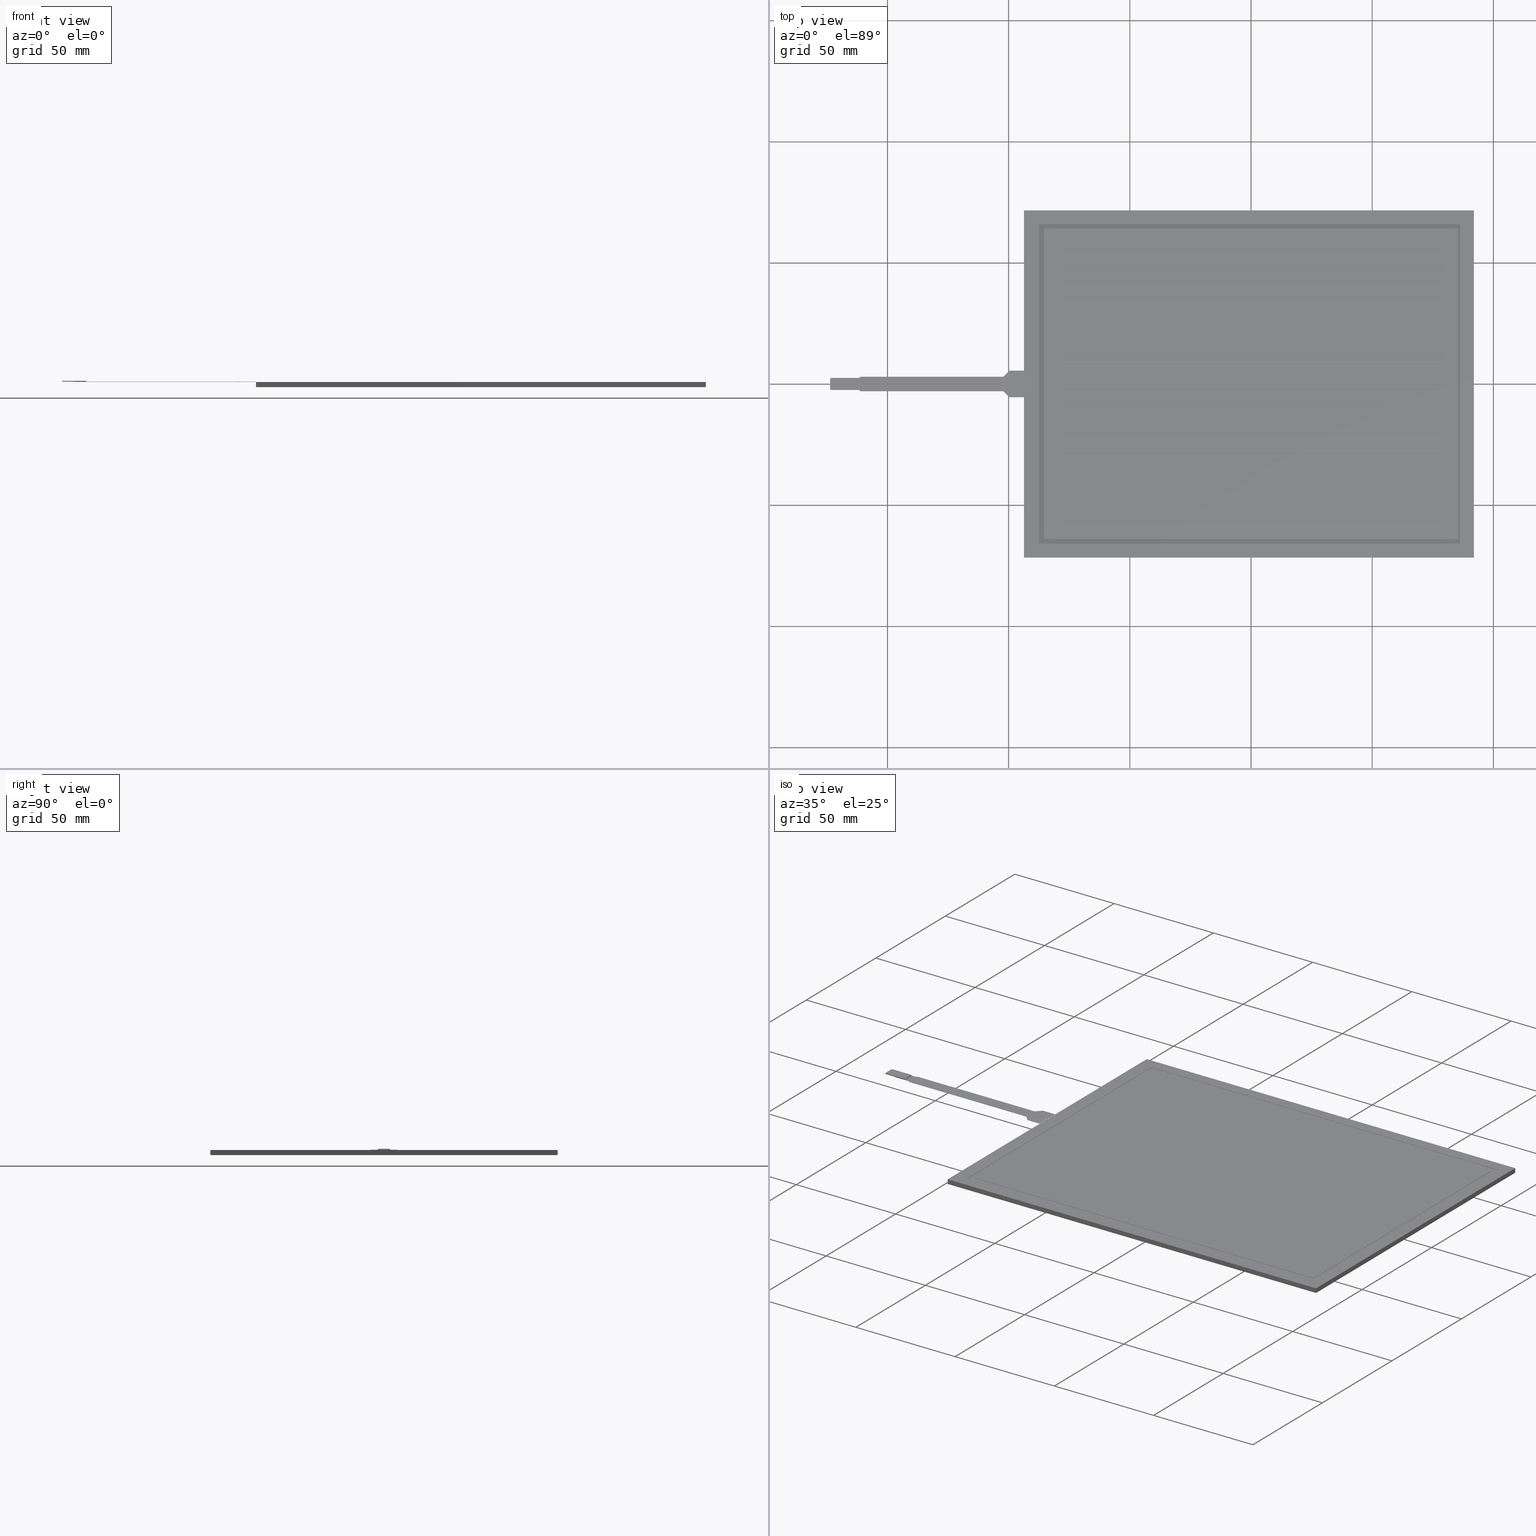
[diagram: canonical four-view strip — front | top / right | iso, engineering-drawing reading convention]
A machine part, canonical four-view strip (front | top / right | iso — engineering-drawing reading convention). The complete STEP part file that produces these views, byte-faithful:
ISO-10303-21;
HEADER;
/* Generated by software containing ST-Developer
 * from STEP Tools, Inc. (www.steptools.com) 
 */

FILE_DESCRIPTION(
/* description */ (''),
/* implementation_level */ '2;1');

FILE_NAME(
/* name */ 
'\\\\172.16.4.5\\\X2\65B06280885390E8\X0\$\\10 \X2\4E0066424FDD7BA1\X0\\\
\X2\5E737530\X0\\\\X2\2466\X0\3D\X2\30C730FC30BF\X0\\\3D\\LST-084C080C
\\LST-084C080C (3D\X2\30C730FC30BF\X0\).stp',
/* time_stamp */ '2024-11-18T13:47:40+09:00',
/* author */ ('n-hirata'),
/* organization */ (''),
/* preprocessor_version */ 'ST-DEVELOPER v18.1',
/* originating_system */ 'Autodesk Inventor 2020',
/* authorisation */ '');

FILE_SCHEMA (('CONFIG_CONTROL_DESIGN'));
ENDSEC;

DATA;
#10=MECHANICAL_DESIGN_GEOMETRIC_PRESENTATION_REPRESENTATION('',(#13,#14),
#1626);
#11=SHAPE_REPRESENTATION_RELATIONSHIP('SRR','None',#1633,#12);
#12=ADVANCED_BREP_SHAPE_REPRESENTATION('',(#33,#34),#1625);
#13=STYLED_ITEM('',(#1642),#33);
#14=STYLED_ITEM('',(#1642),#34);
#15=CIRCLE('',#1037,0.5);
#16=CIRCLE('',#1038,0.5);
#17=CIRCLE('',#1040,0.5);
#18=CIRCLE('',#1041,0.300000000000043);
#19=CIRCLE('',#1042,0.300000000000043);
#20=CIRCLE('',#1043,0.300000000000043);
#21=CIRCLE('',#1044,0.300000000000043);
#22=CIRCLE('',#1047,0.5);
#23=CIRCLE('',#1051,0.300000000000043);
#24=CIRCLE('',#1056,0.300000000000043);
#25=CIRCLE('',#1061,0.300000000000043);
#26=CIRCLE('',#1066,0.300000000000043);
#27=CYLINDRICAL_SURFACE('',#1036,0.5);
#28=CYLINDRICAL_SURFACE('',#1046,0.5);
#29=CYLINDRICAL_SURFACE('',#1050,0.300000000000043);
#30=CYLINDRICAL_SURFACE('',#1055,0.300000000000043);
#31=CYLINDRICAL_SURFACE('',#1060,0.300000000000043);
#32=CYLINDRICAL_SURFACE('',#1065,0.300000000000043);
#33=MANIFOLD_SOLID_BREP('\X2\30BD30EA30C330C9\X0\1',#999);
#34=MANIFOLD_SOLID_BREP('\X2\30BD30EA30C330C9\X0\1',#1000);
#35=FACE_BOUND('',#98,.T.);
#36=FACE_BOUND('',#100,.T.);
#37=FACE_OUTER_BOUND('',#89,.T.);
#38=FACE_OUTER_BOUND('',#90,.T.);
#39=FACE_OUTER_BOUND('',#91,.T.);
#40=FACE_OUTER_BOUND('',#92,.T.);
#41=FACE_OUTER_BOUND('',#93,.T.);
#42=FACE_OUTER_BOUND('',#94,.T.);
#43=FACE_OUTER_BOUND('',#95,.T.);
#44=FACE_OUTER_BOUND('',#96,.T.);
#45=FACE_OUTER_BOUND('',#97,.T.);
#46=FACE_OUTER_BOUND('',#99,.T.);
#47=FACE_OUTER_BOUND('',#101,.T.);
#48=FACE_OUTER_BOUND('',#102,.T.);
#49=FACE_OUTER_BOUND('',#103,.T.);
#50=FACE_OUTER_BOUND('',#104,.T.);
#51=FACE_OUTER_BOUND('',#105,.T.);
#52=FACE_OUTER_BOUND('',#106,.T.);
#53=FACE_OUTER_BOUND('',#107,.T.);
#54=FACE_OUTER_BOUND('',#108,.T.);
#55=FACE_OUTER_BOUND('',#109,.T.);
#56=FACE_OUTER_BOUND('',#110,.T.);
#57=FACE_OUTER_BOUND('',#111,.T.);
#58=FACE_OUTER_BOUND('',#112,.T.);
#59=FACE_OUTER_BOUND('',#113,.T.);
#60=FACE_OUTER_BOUND('',#114,.T.);
#61=FACE_OUTER_BOUND('',#115,.T.);
#62=FACE_OUTER_BOUND('',#116,.T.);
#63=FACE_OUTER_BOUND('',#117,.T.);
#64=FACE_OUTER_BOUND('',#118,.T.);
#65=FACE_OUTER_BOUND('',#119,.T.);
#66=FACE_OUTER_BOUND('',#120,.T.);
#67=FACE_OUTER_BOUND('',#121,.T.);
#68=FACE_OUTER_BOUND('',#122,.T.);
#69=FACE_OUTER_BOUND('',#123,.T.);
#70=FACE_OUTER_BOUND('',#124,.T.);
#71=FACE_OUTER_BOUND('',#125,.T.);
#72=FACE_OUTER_BOUND('',#126,.T.);
#73=FACE_OUTER_BOUND('',#127,.T.);
#74=FACE_OUTER_BOUND('',#128,.T.);
#75=FACE_OUTER_BOUND('',#129,.T.);
#76=FACE_OUTER_BOUND('',#130,.T.);
#77=FACE_OUTER_BOUND('',#131,.T.);
#78=FACE_OUTER_BOUND('',#132,.T.);
#79=FACE_OUTER_BOUND('',#133,.T.);
#80=FACE_OUTER_BOUND('',#134,.T.);
#81=FACE_OUTER_BOUND('',#135,.T.);
#82=FACE_OUTER_BOUND('',#136,.T.);
#83=FACE_OUTER_BOUND('',#137,.T.);
#84=FACE_OUTER_BOUND('',#138,.T.);
#85=FACE_OUTER_BOUND('',#139,.T.);
#86=FACE_OUTER_BOUND('',#140,.T.);
#87=FACE_OUTER_BOUND('',#141,.T.);
#88=FACE_OUTER_BOUND('',#142,.T.);
#89=EDGE_LOOP('',(#625,#626,#627,#628));
#90=EDGE_LOOP('',(#629,#630,#631,#632));
#91=EDGE_LOOP('',(#633,#634,#635,#636));
#92=EDGE_LOOP('',(#637,#638,#639,#640));
#93=EDGE_LOOP('',(#641,#642,#643,#644));
#94=EDGE_LOOP('',(#645,#646,#647,#648));
#95=EDGE_LOOP('',(#649,#650,#651,#652));
#96=EDGE_LOOP('',(#653,#654,#655,#656));
#97=EDGE_LOOP('',(#657,#658,#659,#660));
#98=EDGE_LOOP('',(#661,#662,#663,#664));
#99=EDGE_LOOP('',(#665,#666,#667,#668));
#100=EDGE_LOOP('',(#669,#670,#671,#672));
#101=EDGE_LOOP('',(#673,#674,#675,#676));
#102=EDGE_LOOP('',(#677,#678,#679,#680));
#103=EDGE_LOOP('',(#681,#682,#683,#684));
#104=EDGE_LOOP('',(#685,#686,#687,#688));
#105=EDGE_LOOP('',(#689,#690,#691,#692));
#106=EDGE_LOOP('',(#693,#694,#695,#696));
#107=EDGE_LOOP('',(#697,#698,#699,#700));
#108=EDGE_LOOP('',(#701,#702,#703,#704,#705,#706,#707,#708,#709,#710,#711,
#712,#713,#714,#715,#716,#717,#718,#719,#720,#721,#722));
#109=EDGE_LOOP('',(#723,#724,#725,#726));
#110=EDGE_LOOP('',(#727,#728,#729,#730));
#111=EDGE_LOOP('',(#731,#732,#733,#734));
#112=EDGE_LOOP('',(#735,#736,#737,#738));
#113=EDGE_LOOP('',(#739,#740,#741,#742));
#114=EDGE_LOOP('',(#743,#744,#745,#746));
#115=EDGE_LOOP('',(#747,#748,#749,#750));
#116=EDGE_LOOP('',(#751,#752,#753,#754));
#117=EDGE_LOOP('',(#755,#756,#757,#758));
#118=EDGE_LOOP('',(#759,#760,#761,#762));
#119=EDGE_LOOP('',(#763,#764,#765,#766));
#120=EDGE_LOOP('',(#767,#768,#769,#770));
#121=EDGE_LOOP('',(#771,#772,#773,#774));
#122=EDGE_LOOP('',(#775,#776,#777,#778));
#123=EDGE_LOOP('',(#779,#780,#781,#782));
#124=EDGE_LOOP('',(#783,#784,#785,#786));
#125=EDGE_LOOP('',(#787,#788,#789,#790));
#126=EDGE_LOOP('',(#791,#792,#793,#794));
#127=EDGE_LOOP('',(#795,#796,#797,#798,#799,#800,#801,#802,#803,#804,#805,
#806,#807,#808,#809,#810,#811,#812,#813,#814));
#128=EDGE_LOOP('',(#815,#816,#817,#818,#819,#820,#821,#822));
#129=EDGE_LOOP('',(#823,#824,#825,#826));
#130=EDGE_LOOP('',(#827,#828,#829,#830,#831,#832));
#131=EDGE_LOOP('',(#833,#834,#835,#836));
#132=EDGE_LOOP('',(#837,#838,#839,#840));
#133=EDGE_LOOP('',(#841,#842,#843,#844));
#134=EDGE_LOOP('',(#845,#846,#847,#848));
#135=EDGE_LOOP('',(#849,#850,#851,#852));
#136=EDGE_LOOP('',(#853,#854,#855,#856,#857,#858,#859,#860));
#137=EDGE_LOOP('',(#861,#862,#863,#864));
#138=EDGE_LOOP('',(#865,#866,#867,#868));
#139=EDGE_LOOP('',(#869,#870,#871,#872));
#140=EDGE_LOOP('',(#873,#874,#875,#876));
#141=EDGE_LOOP('',(#877,#878,#879,#880,#881,#882,#883,#884,#885,#886,#887,
#888));
#142=EDGE_LOOP('',(#889,#890,#891,#892,#893,#894,#895,#896,#897,#898,#899,
#900));
#143=LINE('',#1344,#269);
#144=LINE('',#1346,#270);
#145=LINE('',#1348,#271);
#146=LINE('',#1349,#272);
#147=LINE('',#1352,#273);
#148=LINE('',#1354,#274);
#149=LINE('',#1355,#275);
#150=LINE('',#1358,#276);
#151=LINE('',#1360,#277);
#152=LINE('',#1361,#278);
#153=LINE('',#1363,#279);
#154=LINE('',#1364,#280);
#155=LINE('',#1368,#281);
#156=LINE('',#1370,#282);
#157=LINE('',#1372,#283);
#158=LINE('',#1373,#284);
#159=LINE('',#1376,#285);
#160=LINE('',#1378,#286);
#161=LINE('',#1379,#287);
#162=LINE('',#1382,#288);
#163=LINE('',#1384,#289);
#164=LINE('',#1385,#290);
#165=LINE('',#1387,#291);
#166=LINE('',#1388,#292);
#167=LINE('',#1393,#293);
#168=LINE('',#1395,#294);
#169=LINE('',#1397,#295);
#170=LINE('',#1398,#296);
#171=LINE('',#1401,#297);
#172=LINE('',#1403,#298);
#173=LINE('',#1404,#299);
#174=LINE('',#1407,#300);
#175=LINE('',#1408,#301);
#176=LINE('',#1411,#302);
#177=LINE('',#1412,#303);
#178=LINE('',#1414,#304);
#179=LINE('',#1422,#305);
#180=LINE('',#1425,#306);
#181=LINE('',#1428,#307);
#182=LINE('',#1432,#308);
#183=LINE('',#1434,#309);
#184=LINE('',#1436,#310);
#185=LINE('',#1440,#311);
#186=LINE('',#1442,#312);
#187=LINE('',#1444,#313);
#188=LINE('',#1448,#314);
#189=LINE('',#1450,#315);
#190=LINE('',#1452,#316);
#191=LINE('',#1456,#317);
#192=LINE('',#1458,#318);
#193=LINE('',#1460,#319);
#194=LINE('',#1464,#320);
#195=LINE('',#1466,#321);
#196=LINE('',#1467,#322);
#197=LINE('',#1470,#323);
#198=LINE('',#1471,#324);
#199=LINE('',#1475,#325);
#200=LINE('',#1478,#326);
#201=LINE('',#1480,#327);
#202=LINE('',#1481,#328);
#203=LINE('',#1484,#329);
#204=LINE('',#1486,#330);
#205=LINE('',#1487,#331);
#206=LINE('',#1491,#332);
#207=LINE('',#1494,#333);
#208=LINE('',#1496,#334);
#209=LINE('',#1497,#335);
#210=LINE('',#1500,#336);
#211=LINE('',#1502,#337);
#212=LINE('',#1503,#338);
#213=LINE('',#1507,#339);
#214=LINE('',#1510,#340);
#215=LINE('',#1512,#341);
#216=LINE('',#1513,#342);
#217=LINE('',#1516,#343);
#218=LINE('',#1518,#344);
#219=LINE('',#1519,#345);
#220=LINE('',#1523,#346);
#221=LINE('',#1526,#347);
#222=LINE('',#1528,#348);
#223=LINE('',#1529,#349);
#224=LINE('',#1532,#350);
#225=LINE('',#1534,#351);
#226=LINE('',#1535,#352);
#227=LINE('',#1539,#353);
#228=LINE('',#1542,#354);
#229=LINE('',#1544,#355);
#230=LINE('',#1545,#356);
#231=LINE('',#1548,#357);
#232=LINE('',#1550,#358);
#233=LINE('',#1552,#359);
#234=LINE('',#1554,#360);
#235=LINE('',#1555,#361);
#236=LINE('',#1558,#362);
#237=LINE('',#1560,#363);
#238=LINE('',#1561,#364);
#239=LINE('',#1563,#365);
#240=LINE('',#1567,#366);
#241=LINE('',#1569,#367);
#242=LINE('',#1571,#368);
#243=LINE('',#1572,#369);
#244=LINE('',#1575,#370);
#245=LINE('',#1577,#371);
#246=LINE('',#1578,#372);
#247=LINE('',#1581,#373);
#248=LINE('',#1583,#374);
#249=LINE('',#1584,#375);
#250=LINE('',#1587,#376);
#251=LINE('',#1589,#377);
#252=LINE('',#1590,#378);
#253=LINE('',#1593,#379);
#254=LINE('',#1595,#380);
#255=LINE('',#1596,#381);
#256=LINE('',#1598,#382);
#257=LINE('',#1599,#383);
#258=LINE('',#1602,#384);
#259=LINE('',#1604,#385);
#260=LINE('',#1605,#386);
#261=LINE('',#1608,#387);
#262=LINE('',#1610,#388);
#263=LINE('',#1611,#389);
#264=LINE('',#1614,#390);
#265=LINE('',#1616,#391);
#266=LINE('',#1617,#392);
#267=LINE('',#1619,#393);
#268=LINE('',#1620,#394);
#269=VECTOR('',#1088,10.);
#270=VECTOR('',#1089,10.);
#271=VECTOR('',#1090,10.);
#272=VECTOR('',#1091,10.);
#273=VECTOR('',#1094,10.);
#274=VECTOR('',#1095,10.);
#275=VECTOR('',#1096,10.);
#276=VECTOR('',#1099,10.);
#277=VECTOR('',#1100,10.);
#278=VECTOR('',#1101,10.);
#279=VECTOR('',#1104,10.);
#280=VECTOR('',#1105,10.);
#281=VECTOR('',#1108,10.);
#282=VECTOR('',#1109,10.);
#283=VECTOR('',#1110,10.);
#284=VECTOR('',#1111,10.);
#285=VECTOR('',#1114,10.);
#286=VECTOR('',#1115,10.);
#287=VECTOR('',#1116,10.);
#288=VECTOR('',#1119,10.);
#289=VECTOR('',#1120,10.);
#290=VECTOR('',#1121,10.);
#291=VECTOR('',#1124,10.);
#292=VECTOR('',#1125,10.);
#293=VECTOR('',#1130,10.);
#294=VECTOR('',#1131,10.);
#295=VECTOR('',#1132,10.);
#296=VECTOR('',#1133,10.);
#297=VECTOR('',#1136,10.);
#298=VECTOR('',#1137,10.);
#299=VECTOR('',#1138,10.);
#300=VECTOR('',#1141,10.);
#301=VECTOR('',#1142,10.);
#302=VECTOR('',#1145,10.);
#303=VECTOR('',#1146,10.);
#304=VECTOR('',#1149,10.);
#305=VECTOR('',#1158,10.);
#306=VECTOR('',#1161,10.);
#307=VECTOR('',#1164,10.);
#308=VECTOR('',#1167,10.);
#309=VECTOR('',#1168,10.);
#310=VECTOR('',#1169,10.);
#311=VECTOR('',#1172,10.);
#312=VECTOR('',#1173,10.);
#313=VECTOR('',#1174,10.);
#314=VECTOR('',#1177,10.);
#315=VECTOR('',#1178,10.);
#316=VECTOR('',#1179,10.);
#317=VECTOR('',#1182,10.);
#318=VECTOR('',#1183,10.);
#319=VECTOR('',#1184,10.);
#320=VECTOR('',#1187,10.);
#321=VECTOR('',#1188,10.);
#322=VECTOR('',#1189,10.);
#323=VECTOR('',#1192,10.);
#324=VECTOR('',#1193,10.);
#325=VECTOR('',#1198,10.);
#326=VECTOR('',#1201,10.);
#327=VECTOR('',#1202,10.);
#328=VECTOR('',#1203,10.);
#329=VECTOR('',#1206,10.);
#330=VECTOR('',#1207,10.);
#331=VECTOR('',#1208,10.);
#332=VECTOR('',#1215,10.);
#333=VECTOR('',#1218,10.);
#334=VECTOR('',#1219,10.);
#335=VECTOR('',#1220,10.);
#336=VECTOR('',#1223,10.);
#337=VECTOR('',#1224,10.);
#338=VECTOR('',#1225,10.);
#339=VECTOR('',#1232,10.);
#340=VECTOR('',#1235,10.);
#341=VECTOR('',#1236,10.);
#342=VECTOR('',#1237,10.);
#343=VECTOR('',#1240,10.);
#344=VECTOR('',#1241,10.);
#345=VECTOR('',#1242,10.);
#346=VECTOR('',#1249,10.);
#347=VECTOR('',#1252,10.);
#348=VECTOR('',#1253,10.);
#349=VECTOR('',#1254,10.);
#350=VECTOR('',#1257,10.);
#351=VECTOR('',#1258,10.);
#352=VECTOR('',#1259,10.);
#353=VECTOR('',#1266,10.);
#354=VECTOR('',#1269,10.);
#355=VECTOR('',#1270,10.);
#356=VECTOR('',#1271,10.);
#357=VECTOR('',#1274,10.);
#358=VECTOR('',#1275,10.);
#359=VECTOR('',#1276,10.);
#360=VECTOR('',#1277,10.);
#361=VECTOR('',#1278,10.);
#362=VECTOR('',#1281,10.);
#363=VECTOR('',#1282,10.);
#364=VECTOR('',#1283,10.);
#365=VECTOR('',#1286,10.);
#366=VECTOR('',#1289,10.);
#367=VECTOR('',#1290,10.);
#368=VECTOR('',#1291,10.);
#369=VECTOR('',#1292,10.);
#370=VECTOR('',#1295,10.);
#371=VECTOR('',#1296,10.);
#372=VECTOR('',#1297,10.);
#373=VECTOR('',#1300,10.);
#374=VECTOR('',#1301,10.);
#375=VECTOR('',#1302,10.);
#376=VECTOR('',#1305,10.);
#377=VECTOR('',#1306,10.);
#378=VECTOR('',#1307,10.);
#379=VECTOR('',#1310,10.);
#380=VECTOR('',#1311,10.);
#381=VECTOR('',#1312,10.);
#382=VECTOR('',#1315,10.);
#383=VECTOR('',#1316,10.);
#384=VECTOR('',#1319,10.);
#385=VECTOR('',#1320,10.);
#386=VECTOR('',#1321,10.);
#387=VECTOR('',#1324,10.);
#388=VECTOR('',#1325,10.);
#389=VECTOR('',#1326,10.);
#390=VECTOR('',#1329,10.);
#391=VECTOR('',#1330,10.);
#392=VECTOR('',#1331,10.);
#393=VECTOR('',#1334,10.);
#394=VECTOR('',#1335,10.);
#395=VERTEX_POINT('',#1342);
#396=VERTEX_POINT('',#1343);
#397=VERTEX_POINT('',#1345);
#398=VERTEX_POINT('',#1347);
#399=VERTEX_POINT('',#1351);
#400=VERTEX_POINT('',#1353);
#401=VERTEX_POINT('',#1357);
#402=VERTEX_POINT('',#1359);
#403=VERTEX_POINT('',#1366);
#404=VERTEX_POINT('',#1367);
#405=VERTEX_POINT('',#1369);
#406=VERTEX_POINT('',#1371);
#407=VERTEX_POINT('',#1375);
#408=VERTEX_POINT('',#1377);
#409=VERTEX_POINT('',#1381);
#410=VERTEX_POINT('',#1383);
#411=VERTEX_POINT('',#1391);
#412=VERTEX_POINT('',#1392);
#413=VERTEX_POINT('',#1394);
#414=VERTEX_POINT('',#1396);
#415=VERTEX_POINT('',#1400);
#416=VERTEX_POINT('',#1402);
#417=VERTEX_POINT('',#1406);
#418=VERTEX_POINT('',#1410);
#419=VERTEX_POINT('',#1418);
#420=VERTEX_POINT('',#1419);
#421=VERTEX_POINT('',#1421);
#422=VERTEX_POINT('',#1423);
#423=VERTEX_POINT('',#1427);
#424=VERTEX_POINT('',#1429);
#425=VERTEX_POINT('',#1431);
#426=VERTEX_POINT('',#1433);
#427=VERTEX_POINT('',#1435);
#428=VERTEX_POINT('',#1437);
#429=VERTEX_POINT('',#1439);
#430=VERTEX_POINT('',#1441);
#431=VERTEX_POINT('',#1443);
#432=VERTEX_POINT('',#1445);
#433=VERTEX_POINT('',#1447);
#434=VERTEX_POINT('',#1449);
#435=VERTEX_POINT('',#1451);
#436=VERTEX_POINT('',#1453);
#437=VERTEX_POINT('',#1455);
#438=VERTEX_POINT('',#1457);
#439=VERTEX_POINT('',#1459);
#440=VERTEX_POINT('',#1461);
#441=VERTEX_POINT('',#1463);
#442=VERTEX_POINT('',#1465);
#443=VERTEX_POINT('',#1469);
#444=VERTEX_POINT('',#1473);
#445=VERTEX_POINT('',#1477);
#446=VERTEX_POINT('',#1479);
#447=VERTEX_POINT('',#1483);
#448=VERTEX_POINT('',#1485);
#449=VERTEX_POINT('',#1493);
#450=VERTEX_POINT('',#1495);
#451=VERTEX_POINT('',#1499);
#452=VERTEX_POINT('',#1501);
#453=VERTEX_POINT('',#1509);
#454=VERTEX_POINT('',#1511);
#455=VERTEX_POINT('',#1515);
#456=VERTEX_POINT('',#1517);
#457=VERTEX_POINT('',#1525);
#458=VERTEX_POINT('',#1527);
#459=VERTEX_POINT('',#1531);
#460=VERTEX_POINT('',#1533);
#461=VERTEX_POINT('',#1541);
#462=VERTEX_POINT('',#1543);
#463=VERTEX_POINT('',#1547);
#464=VERTEX_POINT('',#1549);
#465=VERTEX_POINT('',#1551);
#466=VERTEX_POINT('',#1553);
#467=VERTEX_POINT('',#1557);
#468=VERTEX_POINT('',#1559);
#469=VERTEX_POINT('',#1565);
#470=VERTEX_POINT('',#1566);
#471=VERTEX_POINT('',#1568);
#472=VERTEX_POINT('',#1570);
#473=VERTEX_POINT('',#1574);
#474=VERTEX_POINT('',#1576);
#475=VERTEX_POINT('',#1580);
#476=VERTEX_POINT('',#1582);
#477=VERTEX_POINT('',#1586);
#478=VERTEX_POINT('',#1588);
#479=VERTEX_POINT('',#1592);
#480=VERTEX_POINT('',#1594);
#481=VERTEX_POINT('',#1601);
#482=VERTEX_POINT('',#1603);
#483=VERTEX_POINT('',#1607);
#484=VERTEX_POINT('',#1609);
#485=VERTEX_POINT('',#1613);
#486=VERTEX_POINT('',#1615);
#487=EDGE_CURVE('',#395,#396,#143,.T.);
#488=EDGE_CURVE('',#395,#397,#144,.T.);
#489=EDGE_CURVE('',#397,#398,#145,.T.);
#490=EDGE_CURVE('',#396,#398,#146,.T.);
#491=EDGE_CURVE('',#399,#395,#147,.T.);
#492=EDGE_CURVE('',#399,#400,#148,.T.);
#493=EDGE_CURVE('',#400,#397,#149,.T.);
#494=EDGE_CURVE('',#401,#399,#150,.T.);
#495=EDGE_CURVE('',#401,#402,#151,.T.);
#496=EDGE_CURVE('',#402,#400,#152,.T.);
#497=EDGE_CURVE('',#396,#401,#153,.T.);
#498=EDGE_CURVE('',#398,#402,#154,.T.);
#499=EDGE_CURVE('',#403,#404,#155,.T.);
#500=EDGE_CURVE('',#403,#405,#156,.T.);
#501=EDGE_CURVE('',#405,#406,#157,.T.);
#502=EDGE_CURVE('',#404,#406,#158,.T.);
#503=EDGE_CURVE('',#407,#403,#159,.T.);
#504=EDGE_CURVE('',#407,#408,#160,.T.);
#505=EDGE_CURVE('',#408,#405,#161,.T.);
#506=EDGE_CURVE('',#409,#407,#162,.T.);
#507=EDGE_CURVE('',#409,#410,#163,.T.);
#508=EDGE_CURVE('',#410,#408,#164,.T.);
#509=EDGE_CURVE('',#404,#409,#165,.T.);
#510=EDGE_CURVE('',#406,#410,#166,.T.);
#511=EDGE_CURVE('',#411,#412,#167,.T.);
#512=EDGE_CURVE('',#412,#413,#168,.T.);
#513=EDGE_CURVE('',#413,#414,#169,.T.);
#514=EDGE_CURVE('',#414,#411,#170,.T.);
#515=EDGE_CURVE('',#412,#415,#171,.T.);
#516=EDGE_CURVE('',#416,#415,#172,.T.);
#517=EDGE_CURVE('',#413,#416,#173,.T.);
#518=EDGE_CURVE('',#417,#416,#174,.T.);
#519=EDGE_CURVE('',#414,#417,#175,.T.);
#520=EDGE_CURVE('',#418,#417,#176,.T.);
#521=EDGE_CURVE('',#411,#418,#177,.T.);
#522=EDGE_CURVE('',#415,#418,#178,.T.);
#523=EDGE_CURVE('',#419,#420,#15,.T.);
#524=EDGE_CURVE('',#420,#421,#179,.T.);
#525=EDGE_CURVE('',#421,#422,#16,.T.);
#526=EDGE_CURVE('',#422,#419,#180,.T.);
#527=EDGE_CURVE('',#423,#421,#181,.T.);
#528=EDGE_CURVE('',#424,#423,#17,.T.);
#529=EDGE_CURVE('',#425,#424,#182,.T.);
#530=EDGE_CURVE('',#426,#425,#183,.T.);
#531=EDGE_CURVE('',#426,#427,#184,.T.);
#532=EDGE_CURVE('',#427,#428,#18,.T.);
#533=EDGE_CURVE('',#428,#429,#185,.T.);
#534=EDGE_CURVE('',#430,#429,#186,.T.);
#535=EDGE_CURVE('',#430,#431,#187,.T.);
#536=EDGE_CURVE('',#431,#432,#19,.T.);
#537=EDGE_CURVE('',#432,#433,#188,.T.);
#538=EDGE_CURVE('',#434,#433,#189,.T.);
#539=EDGE_CURVE('',#434,#435,#190,.T.);
#540=EDGE_CURVE('',#435,#436,#20,.T.);
#541=EDGE_CURVE('',#436,#437,#191,.T.);
#542=EDGE_CURVE('',#438,#437,#192,.T.);
#543=EDGE_CURVE('',#438,#439,#193,.T.);
#544=EDGE_CURVE('',#439,#440,#21,.T.);
#545=EDGE_CURVE('',#440,#441,#194,.T.);
#546=EDGE_CURVE('',#442,#441,#195,.T.);
#547=EDGE_CURVE('',#422,#442,#196,.T.);
#548=EDGE_CURVE('',#443,#420,#197,.T.);
#549=EDGE_CURVE('',#423,#443,#198,.T.);
#550=EDGE_CURVE('',#443,#444,#22,.T.);
#551=EDGE_CURVE('',#444,#424,#199,.T.);
#552=EDGE_CURVE('',#440,#445,#200,.T.);
#553=EDGE_CURVE('',#446,#445,#201,.T.);
#554=EDGE_CURVE('',#441,#446,#202,.T.);
#555=EDGE_CURVE('',#447,#438,#203,.T.);
#556=EDGE_CURVE('',#448,#447,#204,.T.);
#557=EDGE_CURVE('',#439,#448,#205,.T.);
#558=EDGE_CURVE('',#445,#448,#23,.T.);
#559=EDGE_CURVE('',#446,#447,#206,.T.);
#560=EDGE_CURVE('',#436,#449,#207,.T.);
#561=EDGE_CURVE('',#450,#449,#208,.T.);
#562=EDGE_CURVE('',#437,#450,#209,.T.);
#563=EDGE_CURVE('',#451,#434,#210,.T.);
#564=EDGE_CURVE('',#452,#451,#211,.T.);
#565=EDGE_CURVE('',#435,#452,#212,.T.);
#566=EDGE_CURVE('',#449,#452,#24,.T.);
#567=EDGE_CURVE('',#450,#451,#213,.T.);
#568=EDGE_CURVE('',#432,#453,#214,.T.);
#569=EDGE_CURVE('',#454,#453,#215,.T.);
#570=EDGE_CURVE('',#433,#454,#216,.T.);
#571=EDGE_CURVE('',#455,#430,#217,.T.);
#572=EDGE_CURVE('',#456,#455,#218,.T.);
#573=EDGE_CURVE('',#431,#456,#219,.T.);
#574=EDGE_CURVE('',#453,#456,#25,.T.);
#575=EDGE_CURVE('',#454,#455,#220,.T.);
#576=EDGE_CURVE('',#428,#457,#221,.T.);
#577=EDGE_CURVE('',#458,#457,#222,.T.);
#578=EDGE_CURVE('',#429,#458,#223,.T.);
#579=EDGE_CURVE('',#459,#426,#224,.T.);
#580=EDGE_CURVE('',#460,#459,#225,.T.);
#581=EDGE_CURVE('',#427,#460,#226,.T.);
#582=EDGE_CURVE('',#457,#460,#26,.T.);
#583=EDGE_CURVE('',#458,#459,#227,.T.);
#584=EDGE_CURVE('',#461,#425,#228,.T.);
#585=EDGE_CURVE('',#462,#461,#229,.T.);
#586=EDGE_CURVE('',#442,#462,#230,.T.);
#587=EDGE_CURVE('',#463,#462,#231,.T.);
#588=EDGE_CURVE('',#464,#463,#232,.T.);
#589=EDGE_CURVE('',#465,#464,#233,.T.);
#590=EDGE_CURVE('',#465,#466,#234,.T.);
#591=EDGE_CURVE('',#419,#466,#235,.T.);
#592=EDGE_CURVE('',#467,#465,#236,.T.);
#593=EDGE_CURVE('',#467,#468,#237,.T.);
#594=EDGE_CURVE('',#466,#468,#238,.T.);
#595=EDGE_CURVE('',#468,#444,#239,.T.);
#596=EDGE_CURVE('',#469,#470,#240,.T.);
#597=EDGE_CURVE('',#469,#471,#241,.T.);
#598=EDGE_CURVE('',#472,#471,#242,.T.);
#599=EDGE_CURVE('',#470,#472,#243,.T.);
#600=EDGE_CURVE('',#470,#473,#244,.T.);
#601=EDGE_CURVE('',#474,#472,#245,.T.);
#602=EDGE_CURVE('',#473,#474,#246,.T.);
#603=EDGE_CURVE('',#473,#475,#247,.T.);
#604=EDGE_CURVE('',#476,#474,#248,.T.);
#605=EDGE_CURVE('',#475,#476,#249,.T.);
#606=EDGE_CURVE('',#475,#477,#250,.T.);
#607=EDGE_CURVE('',#478,#476,#251,.T.);
#608=EDGE_CURVE('',#477,#478,#252,.T.);
#609=EDGE_CURVE('',#477,#479,#253,.T.);
#610=EDGE_CURVE('',#480,#478,#254,.T.);
#611=EDGE_CURVE('',#479,#480,#255,.T.);
#612=EDGE_CURVE('',#479,#467,#256,.T.);
#613=EDGE_CURVE('',#461,#480,#257,.T.);
#614=EDGE_CURVE('',#464,#481,#258,.T.);
#615=EDGE_CURVE('',#482,#463,#259,.T.);
#616=EDGE_CURVE('',#481,#482,#260,.T.);
#617=EDGE_CURVE('',#481,#483,#261,.T.);
#618=EDGE_CURVE('',#484,#482,#262,.T.);
#619=EDGE_CURVE('',#483,#484,#263,.T.);
#620=EDGE_CURVE('',#483,#485,#264,.T.);
#621=EDGE_CURVE('',#486,#484,#265,.T.);
#622=EDGE_CURVE('',#485,#486,#266,.T.);
#623=EDGE_CURVE('',#485,#469,#267,.T.);
#624=EDGE_CURVE('',#471,#486,#268,.T.);
#625=ORIENTED_EDGE('',*,*,#487,.F.);
#626=ORIENTED_EDGE('',*,*,#488,.T.);
#627=ORIENTED_EDGE('',*,*,#489,.T.);
#628=ORIENTED_EDGE('',*,*,#490,.F.);
#629=ORIENTED_EDGE('',*,*,#491,.F.);
#630=ORIENTED_EDGE('',*,*,#492,.T.);
#631=ORIENTED_EDGE('',*,*,#493,.T.);
#632=ORIENTED_EDGE('',*,*,#488,.F.);
#633=ORIENTED_EDGE('',*,*,#494,.F.);
#634=ORIENTED_EDGE('',*,*,#495,.T.);
#635=ORIENTED_EDGE('',*,*,#496,.T.);
#636=ORIENTED_EDGE('',*,*,#492,.F.);
#637=ORIENTED_EDGE('',*,*,#497,.F.);
#638=ORIENTED_EDGE('',*,*,#490,.T.);
#639=ORIENTED_EDGE('',*,*,#498,.T.);
#640=ORIENTED_EDGE('',*,*,#495,.F.);
#641=ORIENTED_EDGE('',*,*,#499,.F.);
#642=ORIENTED_EDGE('',*,*,#500,.T.);
#643=ORIENTED_EDGE('',*,*,#501,.T.);
#644=ORIENTED_EDGE('',*,*,#502,.F.);
#645=ORIENTED_EDGE('',*,*,#503,.F.);
#646=ORIENTED_EDGE('',*,*,#504,.T.);
#647=ORIENTED_EDGE('',*,*,#505,.T.);
#648=ORIENTED_EDGE('',*,*,#500,.F.);
#649=ORIENTED_EDGE('',*,*,#506,.F.);
#650=ORIENTED_EDGE('',*,*,#507,.T.);
#651=ORIENTED_EDGE('',*,*,#508,.T.);
#652=ORIENTED_EDGE('',*,*,#504,.F.);
#653=ORIENTED_EDGE('',*,*,#509,.F.);
#654=ORIENTED_EDGE('',*,*,#502,.T.);
#655=ORIENTED_EDGE('',*,*,#510,.T.);
#656=ORIENTED_EDGE('',*,*,#507,.F.);
#657=ORIENTED_EDGE('',*,*,#510,.F.);
#658=ORIENTED_EDGE('',*,*,#501,.F.);
#659=ORIENTED_EDGE('',*,*,#505,.F.);
#660=ORIENTED_EDGE('',*,*,#508,.F.);
#661=ORIENTED_EDGE('',*,*,#498,.F.);
#662=ORIENTED_EDGE('',*,*,#489,.F.);
#663=ORIENTED_EDGE('',*,*,#493,.F.);
#664=ORIENTED_EDGE('',*,*,#496,.F.);
#665=ORIENTED_EDGE('',*,*,#511,.T.);
#666=ORIENTED_EDGE('',*,*,#512,.T.);
#667=ORIENTED_EDGE('',*,*,#513,.T.);
#668=ORIENTED_EDGE('',*,*,#514,.T.);
#669=ORIENTED_EDGE('',*,*,#499,.T.);
#670=ORIENTED_EDGE('',*,*,#509,.T.);
#671=ORIENTED_EDGE('',*,*,#506,.T.);
#672=ORIENTED_EDGE('',*,*,#503,.T.);
#673=ORIENTED_EDGE('',*,*,#512,.F.);
#674=ORIENTED_EDGE('',*,*,#515,.T.);
#675=ORIENTED_EDGE('',*,*,#516,.F.);
#676=ORIENTED_EDGE('',*,*,#517,.F.);
#677=ORIENTED_EDGE('',*,*,#513,.F.);
#678=ORIENTED_EDGE('',*,*,#517,.T.);
#679=ORIENTED_EDGE('',*,*,#518,.F.);
#680=ORIENTED_EDGE('',*,*,#519,.F.);
#681=ORIENTED_EDGE('',*,*,#514,.F.);
#682=ORIENTED_EDGE('',*,*,#519,.T.);
#683=ORIENTED_EDGE('',*,*,#520,.F.);
#684=ORIENTED_EDGE('',*,*,#521,.F.);
#685=ORIENTED_EDGE('',*,*,#511,.F.);
#686=ORIENTED_EDGE('',*,*,#521,.T.);
#687=ORIENTED_EDGE('',*,*,#522,.F.);
#688=ORIENTED_EDGE('',*,*,#515,.F.);
#689=ORIENTED_EDGE('',*,*,#487,.T.);
#690=ORIENTED_EDGE('',*,*,#497,.T.);
#691=ORIENTED_EDGE('',*,*,#494,.T.);
#692=ORIENTED_EDGE('',*,*,#491,.T.);
#693=ORIENTED_EDGE('',*,*,#522,.T.);
#694=ORIENTED_EDGE('',*,*,#520,.T.);
#695=ORIENTED_EDGE('',*,*,#518,.T.);
#696=ORIENTED_EDGE('',*,*,#516,.T.);
#697=ORIENTED_EDGE('',*,*,#523,.T.);
#698=ORIENTED_EDGE('',*,*,#524,.T.);
#699=ORIENTED_EDGE('',*,*,#525,.T.);
#700=ORIENTED_EDGE('',*,*,#526,.T.);
#701=ORIENTED_EDGE('',*,*,#525,.F.);
#702=ORIENTED_EDGE('',*,*,#527,.F.);
#703=ORIENTED_EDGE('',*,*,#528,.F.);
#704=ORIENTED_EDGE('',*,*,#529,.F.);
#705=ORIENTED_EDGE('',*,*,#530,.F.);
#706=ORIENTED_EDGE('',*,*,#531,.T.);
#707=ORIENTED_EDGE('',*,*,#532,.T.);
#708=ORIENTED_EDGE('',*,*,#533,.T.);
#709=ORIENTED_EDGE('',*,*,#534,.F.);
#710=ORIENTED_EDGE('',*,*,#535,.T.);
#711=ORIENTED_EDGE('',*,*,#536,.T.);
#712=ORIENTED_EDGE('',*,*,#537,.T.);
#713=ORIENTED_EDGE('',*,*,#538,.F.);
#714=ORIENTED_EDGE('',*,*,#539,.T.);
#715=ORIENTED_EDGE('',*,*,#540,.T.);
#716=ORIENTED_EDGE('',*,*,#541,.T.);
#717=ORIENTED_EDGE('',*,*,#542,.F.);
#718=ORIENTED_EDGE('',*,*,#543,.T.);
#719=ORIENTED_EDGE('',*,*,#544,.T.);
#720=ORIENTED_EDGE('',*,*,#545,.T.);
#721=ORIENTED_EDGE('',*,*,#546,.F.);
#722=ORIENTED_EDGE('',*,*,#547,.F.);
#723=ORIENTED_EDGE('',*,*,#524,.F.);
#724=ORIENTED_EDGE('',*,*,#548,.F.);
#725=ORIENTED_EDGE('',*,*,#549,.F.);
#726=ORIENTED_EDGE('',*,*,#527,.T.);
#727=ORIENTED_EDGE('',*,*,#550,.T.);
#728=ORIENTED_EDGE('',*,*,#551,.T.);
#729=ORIENTED_EDGE('',*,*,#528,.T.);
#730=ORIENTED_EDGE('',*,*,#549,.T.);
#731=ORIENTED_EDGE('',*,*,#545,.F.);
#732=ORIENTED_EDGE('',*,*,#552,.T.);
#733=ORIENTED_EDGE('',*,*,#553,.F.);
#734=ORIENTED_EDGE('',*,*,#554,.F.);
#735=ORIENTED_EDGE('',*,*,#543,.F.);
#736=ORIENTED_EDGE('',*,*,#555,.F.);
#737=ORIENTED_EDGE('',*,*,#556,.F.);
#738=ORIENTED_EDGE('',*,*,#557,.F.);
#739=ORIENTED_EDGE('',*,*,#544,.F.);
#740=ORIENTED_EDGE('',*,*,#557,.T.);
#741=ORIENTED_EDGE('',*,*,#558,.F.);
#742=ORIENTED_EDGE('',*,*,#552,.F.);
#743=ORIENTED_EDGE('',*,*,#558,.T.);
#744=ORIENTED_EDGE('',*,*,#556,.T.);
#745=ORIENTED_EDGE('',*,*,#559,.F.);
#746=ORIENTED_EDGE('',*,*,#553,.T.);
#747=ORIENTED_EDGE('',*,*,#541,.F.);
#748=ORIENTED_EDGE('',*,*,#560,.T.);
#749=ORIENTED_EDGE('',*,*,#561,.F.);
#750=ORIENTED_EDGE('',*,*,#562,.F.);
#751=ORIENTED_EDGE('',*,*,#539,.F.);
#752=ORIENTED_EDGE('',*,*,#563,.F.);
#753=ORIENTED_EDGE('',*,*,#564,.F.);
#754=ORIENTED_EDGE('',*,*,#565,.F.);
#755=ORIENTED_EDGE('',*,*,#540,.F.);
#756=ORIENTED_EDGE('',*,*,#565,.T.);
#757=ORIENTED_EDGE('',*,*,#566,.F.);
#758=ORIENTED_EDGE('',*,*,#560,.F.);
#759=ORIENTED_EDGE('',*,*,#566,.T.);
#760=ORIENTED_EDGE('',*,*,#564,.T.);
#761=ORIENTED_EDGE('',*,*,#567,.F.);
#762=ORIENTED_EDGE('',*,*,#561,.T.);
#763=ORIENTED_EDGE('',*,*,#537,.F.);
#764=ORIENTED_EDGE('',*,*,#568,.T.);
#765=ORIENTED_EDGE('',*,*,#569,.F.);
#766=ORIENTED_EDGE('',*,*,#570,.F.);
#767=ORIENTED_EDGE('',*,*,#535,.F.);
#768=ORIENTED_EDGE('',*,*,#571,.F.);
#769=ORIENTED_EDGE('',*,*,#572,.F.);
#770=ORIENTED_EDGE('',*,*,#573,.F.);
#771=ORIENTED_EDGE('',*,*,#536,.F.);
#772=ORIENTED_EDGE('',*,*,#573,.T.);
#773=ORIENTED_EDGE('',*,*,#574,.F.);
#774=ORIENTED_EDGE('',*,*,#568,.F.);
#775=ORIENTED_EDGE('',*,*,#574,.T.);
#776=ORIENTED_EDGE('',*,*,#572,.T.);
#777=ORIENTED_EDGE('',*,*,#575,.F.);
#778=ORIENTED_EDGE('',*,*,#569,.T.);
#779=ORIENTED_EDGE('',*,*,#533,.F.);
#780=ORIENTED_EDGE('',*,*,#576,.T.);
#781=ORIENTED_EDGE('',*,*,#577,.F.);
#782=ORIENTED_EDGE('',*,*,#578,.F.);
#783=ORIENTED_EDGE('',*,*,#531,.F.);
#784=ORIENTED_EDGE('',*,*,#579,.F.);
#785=ORIENTED_EDGE('',*,*,#580,.F.);
#786=ORIENTED_EDGE('',*,*,#581,.F.);
#787=ORIENTED_EDGE('',*,*,#532,.F.);
#788=ORIENTED_EDGE('',*,*,#581,.T.);
#789=ORIENTED_EDGE('',*,*,#582,.F.);
#790=ORIENTED_EDGE('',*,*,#576,.F.);
#791=ORIENTED_EDGE('',*,*,#582,.T.);
#792=ORIENTED_EDGE('',*,*,#580,.T.);
#793=ORIENTED_EDGE('',*,*,#583,.F.);
#794=ORIENTED_EDGE('',*,*,#577,.T.);
#795=ORIENTED_EDGE('',*,*,#555,.T.);
#796=ORIENTED_EDGE('',*,*,#542,.T.);
#797=ORIENTED_EDGE('',*,*,#562,.T.);
#798=ORIENTED_EDGE('',*,*,#567,.T.);
#799=ORIENTED_EDGE('',*,*,#563,.T.);
#800=ORIENTED_EDGE('',*,*,#538,.T.);
#801=ORIENTED_EDGE('',*,*,#570,.T.);
#802=ORIENTED_EDGE('',*,*,#575,.T.);
#803=ORIENTED_EDGE('',*,*,#571,.T.);
#804=ORIENTED_EDGE('',*,*,#534,.T.);
#805=ORIENTED_EDGE('',*,*,#578,.T.);
#806=ORIENTED_EDGE('',*,*,#583,.T.);
#807=ORIENTED_EDGE('',*,*,#579,.T.);
#808=ORIENTED_EDGE('',*,*,#530,.T.);
#809=ORIENTED_EDGE('',*,*,#584,.F.);
#810=ORIENTED_EDGE('',*,*,#585,.F.);
#811=ORIENTED_EDGE('',*,*,#586,.F.);
#812=ORIENTED_EDGE('',*,*,#546,.T.);
#813=ORIENTED_EDGE('',*,*,#554,.T.);
#814=ORIENTED_EDGE('',*,*,#559,.T.);
#815=ORIENTED_EDGE('',*,*,#526,.F.);
#816=ORIENTED_EDGE('',*,*,#547,.T.);
#817=ORIENTED_EDGE('',*,*,#586,.T.);
#818=ORIENTED_EDGE('',*,*,#587,.F.);
#819=ORIENTED_EDGE('',*,*,#588,.F.);
#820=ORIENTED_EDGE('',*,*,#589,.F.);
#821=ORIENTED_EDGE('',*,*,#590,.T.);
#822=ORIENTED_EDGE('',*,*,#591,.F.);
#823=ORIENTED_EDGE('',*,*,#592,.F.);
#824=ORIENTED_EDGE('',*,*,#593,.T.);
#825=ORIENTED_EDGE('',*,*,#594,.F.);
#826=ORIENTED_EDGE('',*,*,#590,.F.);
#827=ORIENTED_EDGE('',*,*,#523,.F.);
#828=ORIENTED_EDGE('',*,*,#591,.T.);
#829=ORIENTED_EDGE('',*,*,#594,.T.);
#830=ORIENTED_EDGE('',*,*,#595,.T.);
#831=ORIENTED_EDGE('',*,*,#550,.F.);
#832=ORIENTED_EDGE('',*,*,#548,.T.);
#833=ORIENTED_EDGE('',*,*,#596,.F.);
#834=ORIENTED_EDGE('',*,*,#597,.T.);
#835=ORIENTED_EDGE('',*,*,#598,.F.);
#836=ORIENTED_EDGE('',*,*,#599,.F.);
#837=ORIENTED_EDGE('',*,*,#600,.F.);
#838=ORIENTED_EDGE('',*,*,#599,.T.);
#839=ORIENTED_EDGE('',*,*,#601,.F.);
#840=ORIENTED_EDGE('',*,*,#602,.F.);
#841=ORIENTED_EDGE('',*,*,#603,.F.);
#842=ORIENTED_EDGE('',*,*,#602,.T.);
#843=ORIENTED_EDGE('',*,*,#604,.F.);
#844=ORIENTED_EDGE('',*,*,#605,.F.);
#845=ORIENTED_EDGE('',*,*,#606,.F.);
#846=ORIENTED_EDGE('',*,*,#605,.T.);
#847=ORIENTED_EDGE('',*,*,#607,.F.);
#848=ORIENTED_EDGE('',*,*,#608,.F.);
#849=ORIENTED_EDGE('',*,*,#609,.F.);
#850=ORIENTED_EDGE('',*,*,#608,.T.);
#851=ORIENTED_EDGE('',*,*,#610,.F.);
#852=ORIENTED_EDGE('',*,*,#611,.F.);
#853=ORIENTED_EDGE('',*,*,#551,.F.);
#854=ORIENTED_EDGE('',*,*,#595,.F.);
#855=ORIENTED_EDGE('',*,*,#593,.F.);
#856=ORIENTED_EDGE('',*,*,#612,.F.);
#857=ORIENTED_EDGE('',*,*,#611,.T.);
#858=ORIENTED_EDGE('',*,*,#613,.F.);
#859=ORIENTED_EDGE('',*,*,#584,.T.);
#860=ORIENTED_EDGE('',*,*,#529,.T.);
#861=ORIENTED_EDGE('',*,*,#614,.F.);
#862=ORIENTED_EDGE('',*,*,#588,.T.);
#863=ORIENTED_EDGE('',*,*,#615,.F.);
#864=ORIENTED_EDGE('',*,*,#616,.F.);
#865=ORIENTED_EDGE('',*,*,#617,.F.);
#866=ORIENTED_EDGE('',*,*,#616,.T.);
#867=ORIENTED_EDGE('',*,*,#618,.F.);
#868=ORIENTED_EDGE('',*,*,#619,.F.);
#869=ORIENTED_EDGE('',*,*,#620,.F.);
#870=ORIENTED_EDGE('',*,*,#619,.T.);
#871=ORIENTED_EDGE('',*,*,#621,.F.);
#872=ORIENTED_EDGE('',*,*,#622,.F.);
#873=ORIENTED_EDGE('',*,*,#623,.F.);
#874=ORIENTED_EDGE('',*,*,#622,.T.);
#875=ORIENTED_EDGE('',*,*,#624,.F.);
#876=ORIENTED_EDGE('',*,*,#597,.F.);
#877=ORIENTED_EDGE('',*,*,#592,.T.);
#878=ORIENTED_EDGE('',*,*,#589,.T.);
#879=ORIENTED_EDGE('',*,*,#614,.T.);
#880=ORIENTED_EDGE('',*,*,#617,.T.);
#881=ORIENTED_EDGE('',*,*,#620,.T.);
#882=ORIENTED_EDGE('',*,*,#623,.T.);
#883=ORIENTED_EDGE('',*,*,#596,.T.);
#884=ORIENTED_EDGE('',*,*,#600,.T.);
#885=ORIENTED_EDGE('',*,*,#603,.T.);
#886=ORIENTED_EDGE('',*,*,#606,.T.);
#887=ORIENTED_EDGE('',*,*,#609,.T.);
#888=ORIENTED_EDGE('',*,*,#612,.T.);
#889=ORIENTED_EDGE('',*,*,#585,.T.);
#890=ORIENTED_EDGE('',*,*,#613,.T.);
#891=ORIENTED_EDGE('',*,*,#610,.T.);
#892=ORIENTED_EDGE('',*,*,#607,.T.);
#893=ORIENTED_EDGE('',*,*,#604,.T.);
#894=ORIENTED_EDGE('',*,*,#601,.T.);
#895=ORIENTED_EDGE('',*,*,#598,.T.);
#896=ORIENTED_EDGE('',*,*,#624,.T.);
#897=ORIENTED_EDGE('',*,*,#621,.T.);
#898=ORIENTED_EDGE('',*,*,#618,.T.);
#899=ORIENTED_EDGE('',*,*,#615,.T.);
#900=ORIENTED_EDGE('',*,*,#587,.T.);
#901=PLANE('',#1020);
#902=PLANE('',#1021);
#903=PLANE('',#1022);
#904=PLANE('',#1023);
#905=PLANE('',#1024);
#906=PLANE('',#1025);
#907=PLANE('',#1026);
#908=PLANE('',#1027);
#909=PLANE('',#1028);
#910=PLANE('',#1029);
#911=PLANE('',#1030);
#912=PLANE('',#1031);
#913=PLANE('',#1032);
#914=PLANE('',#1033);
#915=PLANE('',#1034);
#916=PLANE('',#1035);
#917=PLANE('',#1039);
#918=PLANE('',#1045);
#919=PLANE('',#1048);
#920=PLANE('',#1049);
#921=PLANE('',#1052);
#922=PLANE('',#1053);
#923=PLANE('',#1054);
#924=PLANE('',#1057);
#925=PLANE('',#1058);
#926=PLANE('',#1059);
#927=PLANE('',#1062);
#928=PLANE('',#1063);
#929=PLANE('',#1064);
#930=PLANE('',#1067);
#931=PLANE('',#1068);
#932=PLANE('',#1069);
#933=PLANE('',#1070);
#934=PLANE('',#1071);
#935=PLANE('',#1072);
#936=PLANE('',#1073);
#937=PLANE('',#1074);
#938=PLANE('',#1075);
#939=PLANE('',#1076);
#940=PLANE('',#1077);
#941=PLANE('',#1078);
#942=PLANE('',#1079);
#943=PLANE('',#1080);
#944=PLANE('',#1081);
#945=PLANE('',#1082);
#946=PLANE('',#1083);
#947=ADVANCED_FACE('',(#37),#901,.F.);
#948=ADVANCED_FACE('',(#38),#902,.F.);
#949=ADVANCED_FACE('',(#39),#903,.F.);
#950=ADVANCED_FACE('',(#40),#904,.F.);
#951=ADVANCED_FACE('',(#41),#905,.F.);
#952=ADVANCED_FACE('',(#42),#906,.F.);
#953=ADVANCED_FACE('',(#43),#907,.F.);
#954=ADVANCED_FACE('',(#44),#908,.F.);
#955=ADVANCED_FACE('',(#45,#35),#909,.F.);
#956=ADVANCED_FACE('',(#46,#36),#910,.T.);
#957=ADVANCED_FACE('',(#47),#911,.T.);
#958=ADVANCED_FACE('',(#48),#912,.T.);
#959=ADVANCED_FACE('',(#49),#913,.T.);
#960=ADVANCED_FACE('',(#50),#914,.T.);
#961=ADVANCED_FACE('',(#51),#915,.T.);
#962=ADVANCED_FACE('',(#52),#916,.T.);
#963=ADVANCED_FACE('',(#53),#27,.T.);
#964=ADVANCED_FACE('',(#54),#917,.F.);
#965=ADVANCED_FACE('',(#55),#918,.T.);
#966=ADVANCED_FACE('',(#56),#28,.T.);
#967=ADVANCED_FACE('',(#57),#919,.T.);
#968=ADVANCED_FACE('',(#58),#920,.T.);
#969=ADVANCED_FACE('',(#59),#29,.T.);
#970=ADVANCED_FACE('',(#60),#921,.T.);
#971=ADVANCED_FACE('',(#61),#922,.T.);
#972=ADVANCED_FACE('',(#62),#923,.T.);
#973=ADVANCED_FACE('',(#63),#30,.T.);
#974=ADVANCED_FACE('',(#64),#924,.T.);
#975=ADVANCED_FACE('',(#65),#925,.T.);
#976=ADVANCED_FACE('',(#66),#926,.T.);
#977=ADVANCED_FACE('',(#67),#31,.T.);
#978=ADVANCED_FACE('',(#68),#927,.T.);
#979=ADVANCED_FACE('',(#69),#928,.T.);
#980=ADVANCED_FACE('',(#70),#929,.T.);
#981=ADVANCED_FACE('',(#71),#32,.T.);
#982=ADVANCED_FACE('',(#72),#930,.T.);
#983=ADVANCED_FACE('',(#73),#931,.F.);
#984=ADVANCED_FACE('',(#74),#932,.T.);
#985=ADVANCED_FACE('',(#75),#933,.T.);
#986=ADVANCED_FACE('',(#76),#934,.T.);
#987=ADVANCED_FACE('',(#77),#935,.T.);
#988=ADVANCED_FACE('',(#78),#936,.T.);
#989=ADVANCED_FACE('',(#79),#937,.T.);
#990=ADVANCED_FACE('',(#80),#938,.T.);
#991=ADVANCED_FACE('',(#81),#939,.T.);
#992=ADVANCED_FACE('',(#82),#940,.T.);
#993=ADVANCED_FACE('',(#83),#941,.T.);
#994=ADVANCED_FACE('',(#84),#942,.T.);
#995=ADVANCED_FACE('',(#85),#943,.T.);
#996=ADVANCED_FACE('',(#86),#944,.T.);
#997=ADVANCED_FACE('',(#87),#945,.T.);
#998=ADVANCED_FACE('',(#88),#946,.T.);
#999=CLOSED_SHELL('',(#947,#948,#949,#950,#951,#952,#953,#954,#955,#956,
#957,#958,#959,#960,#961,#962));
#1000=CLOSED_SHELL('',(#963,#964,#965,#966,#967,#968,#969,#970,#971,#972,
#973,#974,#975,#976,#977,#978,#979,#980,#981,#982,#983,#984,#985,#986,#987,
#988,#989,#990,#991,#992,#993,#994,#995,#996,#997,#998));
#1001=DERIVED_UNIT_ELEMENT(#1003,1.);
#1002=DERIVED_UNIT_ELEMENT(#1628,3.);
#1003=(
MASS_UNIT()
NAMED_UNIT(*)
SI_UNIT($,.GRAM.)
);
#1004=DERIVED_UNIT((#1001,#1002));
#1005=MEASURE_REPRESENTATION_ITEM('density measure',
POSITIVE_RATIO_MEASURE(1.),#1004);
#1006=PROPERTY_DEFINITION_REPRESENTATION(#1011,#1008);
#1007=PROPERTY_DEFINITION_REPRESENTATION(#1012,#1009);
#1008=REPRESENTATION('material name',(#1010),#1625);
#1009=REPRESENTATION('density',(#1005),#1625);
#1010=DESCRIPTIVE_REPRESENTATION_ITEM('\X2\4E00822C\X0\','\X2\4E00822C\X0\');
#1011=PROPERTY_DEFINITION('material property','material name',#1635);
#1012=PROPERTY_DEFINITION('material property','density of part',#1635);
#1013=DATE_TIME_ROLE('creation_date');
#1014=CC_DESIGN_DATE_AND_TIME_ASSIGNMENT(#1015,#1013,(#1635));
#1015=DATE_AND_TIME(#1016,#1017);
#1016=CALENDAR_DATE(2024,6,9);
#1017=LOCAL_TIME(6,30,8.,#1018);
#1018=COORDINATED_UNIVERSAL_TIME_OFFSET(0,0,.BEHIND.);
#1019=AXIS2_PLACEMENT_3D('placement',#1340,#1084,#1085);
#1020=AXIS2_PLACEMENT_3D('',#1341,#1086,#1087);
#1021=AXIS2_PLACEMENT_3D('',#1350,#1092,#1093);
#1022=AXIS2_PLACEMENT_3D('',#1356,#1097,#1098);
#1023=AXIS2_PLACEMENT_3D('',#1362,#1102,#1103);
#1024=AXIS2_PLACEMENT_3D('',#1365,#1106,#1107);
#1025=AXIS2_PLACEMENT_3D('',#1374,#1112,#1113);
#1026=AXIS2_PLACEMENT_3D('',#1380,#1117,#1118);
#1027=AXIS2_PLACEMENT_3D('',#1386,#1122,#1123);
#1028=AXIS2_PLACEMENT_3D('',#1389,#1126,#1127);
#1029=AXIS2_PLACEMENT_3D('',#1390,#1128,#1129);
#1030=AXIS2_PLACEMENT_3D('',#1399,#1134,#1135);
#1031=AXIS2_PLACEMENT_3D('',#1405,#1139,#1140);
#1032=AXIS2_PLACEMENT_3D('',#1409,#1143,#1144);
#1033=AXIS2_PLACEMENT_3D('',#1413,#1147,#1148);
#1034=AXIS2_PLACEMENT_3D('',#1415,#1150,#1151);
#1035=AXIS2_PLACEMENT_3D('',#1416,#1152,#1153);
#1036=AXIS2_PLACEMENT_3D('',#1417,#1154,#1155);
#1037=AXIS2_PLACEMENT_3D('',#1420,#1156,#1157);
#1038=AXIS2_PLACEMENT_3D('',#1424,#1159,#1160);
#1039=AXIS2_PLACEMENT_3D('',#1426,#1162,#1163);
#1040=AXIS2_PLACEMENT_3D('',#1430,#1165,#1166);
#1041=AXIS2_PLACEMENT_3D('',#1438,#1170,#1171);
#1042=AXIS2_PLACEMENT_3D('',#1446,#1175,#1176);
#1043=AXIS2_PLACEMENT_3D('',#1454,#1180,#1181);
#1044=AXIS2_PLACEMENT_3D('',#1462,#1185,#1186);
#1045=AXIS2_PLACEMENT_3D('',#1468,#1190,#1191);
#1046=AXIS2_PLACEMENT_3D('',#1472,#1194,#1195);
#1047=AXIS2_PLACEMENT_3D('',#1474,#1196,#1197);
#1048=AXIS2_PLACEMENT_3D('',#1476,#1199,#1200);
#1049=AXIS2_PLACEMENT_3D('',#1482,#1204,#1205);
#1050=AXIS2_PLACEMENT_3D('',#1488,#1209,#1210);
#1051=AXIS2_PLACEMENT_3D('',#1489,#1211,#1212);
#1052=AXIS2_PLACEMENT_3D('',#1490,#1213,#1214);
#1053=AXIS2_PLACEMENT_3D('',#1492,#1216,#1217);
#1054=AXIS2_PLACEMENT_3D('',#1498,#1221,#1222);
#1055=AXIS2_PLACEMENT_3D('',#1504,#1226,#1227);
#1056=AXIS2_PLACEMENT_3D('',#1505,#1228,#1229);
#1057=AXIS2_PLACEMENT_3D('',#1506,#1230,#1231);
#1058=AXIS2_PLACEMENT_3D('',#1508,#1233,#1234);
#1059=AXIS2_PLACEMENT_3D('',#1514,#1238,#1239);
#1060=AXIS2_PLACEMENT_3D('',#1520,#1243,#1244);
#1061=AXIS2_PLACEMENT_3D('',#1521,#1245,#1246);
#1062=AXIS2_PLACEMENT_3D('',#1522,#1247,#1248);
#1063=AXIS2_PLACEMENT_3D('',#1524,#1250,#1251);
#1064=AXIS2_PLACEMENT_3D('',#1530,#1255,#1256);
#1065=AXIS2_PLACEMENT_3D('',#1536,#1260,#1261);
#1066=AXIS2_PLACEMENT_3D('',#1537,#1262,#1263);
#1067=AXIS2_PLACEMENT_3D('',#1538,#1264,#1265);
#1068=AXIS2_PLACEMENT_3D('',#1540,#1267,#1268);
#1069=AXIS2_PLACEMENT_3D('',#1546,#1272,#1273);
#1070=AXIS2_PLACEMENT_3D('',#1556,#1279,#1280);
#1071=AXIS2_PLACEMENT_3D('',#1562,#1284,#1285);
#1072=AXIS2_PLACEMENT_3D('',#1564,#1287,#1288);
#1073=AXIS2_PLACEMENT_3D('',#1573,#1293,#1294);
#1074=AXIS2_PLACEMENT_3D('',#1579,#1298,#1299);
#1075=AXIS2_PLACEMENT_3D('',#1585,#1303,#1304);
#1076=AXIS2_PLACEMENT_3D('',#1591,#1308,#1309);
#1077=AXIS2_PLACEMENT_3D('',#1597,#1313,#1314);
#1078=AXIS2_PLACEMENT_3D('',#1600,#1317,#1318);
#1079=AXIS2_PLACEMENT_3D('',#1606,#1322,#1323);
#1080=AXIS2_PLACEMENT_3D('',#1612,#1327,#1328);
#1081=AXIS2_PLACEMENT_3D('',#1618,#1332,#1333);
#1082=AXIS2_PLACEMENT_3D('',#1621,#1336,#1337);
#1083=AXIS2_PLACEMENT_3D('',#1622,#1338,#1339);
#1084=DIRECTION('axis',(0.,0.,1.));
#1085=DIRECTION('refdir',(1.,0.,0.));
#1086=DIRECTION('center_axis',(0.,1.,0.));
#1087=DIRECTION('ref_axis',(1.,0.,0.));
#1088=DIRECTION('',(1.,0.,0.));
#1089=DIRECTION('',(0.,0.,-1.));
#1090=DIRECTION('',(1.,0.,0.));
#1091=DIRECTION('',(0.,0.,-1.));
#1092=DIRECTION('center_axis',(1.,0.,0.));
#1093=DIRECTION('ref_axis',(0.,-1.,0.));
#1094=DIRECTION('',(0.,-1.,0.));
#1095=DIRECTION('',(0.,0.,-1.));
#1096=DIRECTION('',(0.,-1.,0.));
#1097=DIRECTION('center_axis',(0.,-1.,0.));
#1098=DIRECTION('ref_axis',(-1.,0.,0.));
#1099=DIRECTION('',(-1.,0.,0.));
#1100=DIRECTION('',(0.,0.,-1.));
#1101=DIRECTION('',(-1.,0.,0.));
#1102=DIRECTION('center_axis',(-1.,0.,0.));
#1103=DIRECTION('ref_axis',(0.,1.,0.));
#1104=DIRECTION('',(0.,1.,0.));
#1105=DIRECTION('',(0.,1.,0.));
#1106=DIRECTION('center_axis',(-1.,-2.68534669599433E-16,0.));
#1107=DIRECTION('ref_axis',(-2.68534669599433E-16,1.,0.));
#1108=DIRECTION('',(-2.68534669599433E-16,1.,0.));
#1109=DIRECTION('',(0.,0.,-1.));
#1110=DIRECTION('',(-2.68534669599433E-16,1.,0.));
#1111=DIRECTION('',(0.,0.,-1.));
#1112=DIRECTION('center_axis',(1.52346212641531E-16,-1.,0.));
#1113=DIRECTION('ref_axis',(-1.,-1.52346212641531E-16,0.));
#1114=DIRECTION('',(-1.,-1.52346212641531E-16,0.));
#1115=DIRECTION('',(0.,0.,-1.));
#1116=DIRECTION('',(-1.,-1.52346212641531E-16,0.));
#1117=DIRECTION('center_axis',(1.,0.,0.));
#1118=DIRECTION('ref_axis',(0.,-1.,0.));
#1119=DIRECTION('',(0.,-1.,0.));
#1120=DIRECTION('',(0.,0.,-1.));
#1121=DIRECTION('',(0.,-1.,0.));
#1122=DIRECTION('center_axis',(0.,1.,0.));
#1123=DIRECTION('ref_axis',(1.,0.,0.));
#1124=DIRECTION('',(1.,0.,0.));
#1125=DIRECTION('',(1.,0.,0.));
#1126=DIRECTION('center_axis',(0.,0.,-1.));
#1127=DIRECTION('ref_axis',(-1.,0.,0.));
#1128=DIRECTION('center_axis',(0.,0.,1.));
#1129=DIRECTION('ref_axis',(1.,0.,0.));
#1130=DIRECTION('',(-1.,0.,0.));
#1131=DIRECTION('',(2.47921401172401E-16,-1.,0.));
#1132=DIRECTION('',(1.,1.43563322149805E-16,0.));
#1133=DIRECTION('',(1.239607005862E-16,1.,0.));
#1134=DIRECTION('center_axis',(-1.,-2.47921401172401E-16,0.));
#1135=DIRECTION('ref_axis',(-2.47921401172401E-16,1.,0.));
#1136=DIRECTION('',(0.,0.,-1.));
#1137=DIRECTION('',(-2.47921401172401E-16,1.,0.));
#1138=DIRECTION('',(0.,0.,-1.));
#1139=DIRECTION('center_axis',(1.43563322149805E-16,-1.,0.));
#1140=DIRECTION('ref_axis',(-1.,-1.43563322149805E-16,0.));
#1141=DIRECTION('',(-1.,-1.43563322149805E-16,0.));
#1142=DIRECTION('',(0.,0.,-1.));
#1143=DIRECTION('center_axis',(1.,-1.239607005862E-16,0.));
#1144=DIRECTION('ref_axis',(-1.239607005862E-16,-1.,0.));
#1145=DIRECTION('',(-1.239607005862E-16,-1.,0.));
#1146=DIRECTION('',(0.,0.,-1.));
#1147=DIRECTION('center_axis',(0.,1.,0.));
#1148=DIRECTION('ref_axis',(1.,0.,0.));
#1149=DIRECTION('',(1.,0.,0.));
#1150=DIRECTION('center_axis',(0.,0.,1.));
#1151=DIRECTION('ref_axis',(1.,0.,0.));
#1152=DIRECTION('center_axis',(0.,0.,-1.));
#1153=DIRECTION('ref_axis',(-1.,0.,0.));
#1154=DIRECTION('center_axis',(0.,0.,1.));
#1155=DIRECTION('ref_axis',(-0.707106781186578,-0.707106781186517,0.));
#1156=DIRECTION('center_axis',(0.,0.,-1.));
#1157=DIRECTION('ref_axis',(-0.707106781186578,-0.707106781186517,0.));
#1158=DIRECTION('',(0.,0.,-1.));
#1159=DIRECTION('center_axis',(0.,0.,1.));
#1160=DIRECTION('ref_axis',(-0.707106781186578,-0.707106781186517,0.));
#1161=DIRECTION('',(0.,0.,1.));
#1162=DIRECTION('center_axis',(0.,0.,1.));
#1163=DIRECTION('ref_axis',(1.,0.,0.));
#1164=DIRECTION('',(0.,-1.,0.));
#1165=DIRECTION('center_axis',(0.,0.,1.));
#1166=DIRECTION('ref_axis',(-0.707106781186577,0.707106781186518,0.));
#1167=DIRECTION('',(-1.,1.66533453693774E-15,0.));
#1168=DIRECTION('',(0.,1.,0.));
#1169=DIRECTION('',(-1.,0.,0.));
#1170=DIRECTION('center_axis',(0.,0.,1.));
#1171=DIRECTION('ref_axis',(0.,-1.,0.));
#1172=DIRECTION('',(1.,-9.97953280561938E-16,0.));
#1173=DIRECTION('',(0.,1.,0.));
#1174=DIRECTION('',(-1.,0.,0.));
#1175=DIRECTION('center_axis',(0.,0.,1.));
#1176=DIRECTION('ref_axis',(0.,-1.,0.));
#1177=DIRECTION('',(1.,-9.97953280561938E-16,0.));
#1178=DIRECTION('',(0.,1.,0.));
#1179=DIRECTION('',(-1.,0.,0.));
#1180=DIRECTION('center_axis',(0.,0.,1.));
#1181=DIRECTION('ref_axis',(0.,-1.,0.));
#1182=DIRECTION('',(1.,-9.97953280561938E-16,0.));
#1183=DIRECTION('',(0.,1.,0.));
#1184=DIRECTION('',(-1.,0.,0.));
#1185=DIRECTION('center_axis',(0.,0.,1.));
#1186=DIRECTION('ref_axis',(0.,-1.,0.));
#1187=DIRECTION('',(1.,-9.97953280561938E-16,0.));
#1188=DIRECTION('',(0.,1.,0.));
#1189=DIRECTION('',(1.,2.22044604925031E-15,0.));
#1190=DIRECTION('center_axis',(-1.,0.,0.));
#1191=DIRECTION('ref_axis',(0.,1.,0.));
#1192=DIRECTION('',(0.,-1.,0.));
#1193=DIRECTION('',(0.,0.,1.));
#1194=DIRECTION('center_axis',(0.,0.,1.));
#1195=DIRECTION('ref_axis',(-0.707106781186577,0.707106781186518,0.));
#1196=DIRECTION('center_axis',(0.,0.,-1.));
#1197=DIRECTION('ref_axis',(-0.707106781186577,0.707106781186518,0.));
#1198=DIRECTION('',(0.,0.,-1.));
#1199=DIRECTION('center_axis',(-9.97953280561938E-16,-1.,0.));
#1200=DIRECTION('ref_axis',(-1.,9.97953280561938E-16,0.));
#1201=DIRECTION('',(0.,0.,-1.));
#1202=DIRECTION('',(-1.,9.97953280561938E-16,0.));
#1203=DIRECTION('',(0.,0.,-1.));
#1204=DIRECTION('center_axis',(0.,1.,0.));
#1205=DIRECTION('ref_axis',(1.,0.,0.));
#1206=DIRECTION('',(0.,0.,1.));
#1207=DIRECTION('',(1.,0.,0.));
#1208=DIRECTION('',(0.,0.,-1.));
#1209=DIRECTION('center_axis',(0.,0.,-1.));
#1210=DIRECTION('ref_axis',(0.,-1.,0.));
#1211=DIRECTION('center_axis',(0.,0.,-1.));
#1212=DIRECTION('ref_axis',(0.,-1.,0.));
#1213=DIRECTION('center_axis',(0.,0.,-1.));
#1214=DIRECTION('ref_axis',(-1.,0.,0.));
#1215=DIRECTION('',(0.,1.,0.));
#1216=DIRECTION('center_axis',(-9.97953280561938E-16,-1.,0.));
#1217=DIRECTION('ref_axis',(-1.,9.97953280561938E-16,0.));
#1218=DIRECTION('',(0.,0.,-1.));
#1219=DIRECTION('',(-1.,9.97953280561938E-16,0.));
#1220=DIRECTION('',(0.,0.,-1.));
#1221=DIRECTION('center_axis',(0.,1.,0.));
#1222=DIRECTION('ref_axis',(1.,0.,0.));
#1223=DIRECTION('',(0.,0.,1.));
#1224=DIRECTION('',(1.,0.,0.));
#1225=DIRECTION('',(0.,0.,-1.));
#1226=DIRECTION('center_axis',(0.,0.,-1.));
#1227=DIRECTION('ref_axis',(0.,-1.,0.));
#1228=DIRECTION('center_axis',(0.,0.,-1.));
#1229=DIRECTION('ref_axis',(0.,-1.,0.));
#1230=DIRECTION('center_axis',(0.,0.,-1.));
#1231=DIRECTION('ref_axis',(-1.,0.,0.));
#1232=DIRECTION('',(0.,1.,0.));
#1233=DIRECTION('center_axis',(-9.97953280561938E-16,-1.,0.));
#1234=DIRECTION('ref_axis',(-1.,9.97953280561938E-16,0.));
#1235=DIRECTION('',(0.,0.,-1.));
#1236=DIRECTION('',(-1.,9.97953280561938E-16,0.));
#1237=DIRECTION('',(0.,0.,-1.));
#1238=DIRECTION('center_axis',(0.,1.,0.));
#1239=DIRECTION('ref_axis',(1.,0.,0.));
#1240=DIRECTION('',(0.,0.,1.));
#1241=DIRECTION('',(1.,0.,0.));
#1242=DIRECTION('',(0.,0.,-1.));
#1243=DIRECTION('center_axis',(0.,0.,-1.));
#1244=DIRECTION('ref_axis',(0.,-1.,0.));
#1245=DIRECTION('center_axis',(0.,0.,-1.));
#1246=DIRECTION('ref_axis',(0.,-1.,0.));
#1247=DIRECTION('center_axis',(0.,0.,-1.));
#1248=DIRECTION('ref_axis',(-1.,0.,0.));
#1249=DIRECTION('',(0.,1.,0.));
#1250=DIRECTION('center_axis',(-9.97953280561938E-16,-1.,0.));
#1251=DIRECTION('ref_axis',(-1.,9.97953280561938E-16,0.));
#1252=DIRECTION('',(0.,0.,-1.));
#1253=DIRECTION('',(-1.,9.97953280561938E-16,0.));
#1254=DIRECTION('',(0.,0.,-1.));
#1255=DIRECTION('center_axis',(0.,1.,0.));
#1256=DIRECTION('ref_axis',(1.,0.,0.));
#1257=DIRECTION('',(0.,0.,1.));
#1258=DIRECTION('',(1.,0.,0.));
#1259=DIRECTION('',(0.,0.,-1.));
#1260=DIRECTION('center_axis',(0.,0.,-1.));
#1261=DIRECTION('ref_axis',(0.,-1.,0.));
#1262=DIRECTION('center_axis',(0.,0.,-1.));
#1263=DIRECTION('ref_axis',(0.,-1.,0.));
#1264=DIRECTION('center_axis',(0.,0.,-1.));
#1265=DIRECTION('ref_axis',(-1.,0.,0.));
#1266=DIRECTION('',(0.,1.,0.));
#1267=DIRECTION('center_axis',(1.,0.,0.));
#1268=DIRECTION('ref_axis',(0.,1.,0.));
#1269=DIRECTION('',(0.,0.,1.));
#1270=DIRECTION('',(0.,1.,0.));
#1271=DIRECTION('',(0.,0.,-1.));
#1272=DIRECTION('center_axis',(2.22044604925031E-15,-1.,0.));
#1273=DIRECTION('ref_axis',(-1.,-2.22044604925031E-15,0.));
#1274=DIRECTION('',(-1.,-2.22044604925031E-15,0.));
#1275=DIRECTION('',(0.,0.,-1.));
#1276=DIRECTION('',(1.,2.22044604925031E-15,0.));
#1277=DIRECTION('',(0.,0.,1.));
#1278=DIRECTION('',(1.,2.22044604925031E-15,0.));
#1279=DIRECTION('center_axis',(1.,0.,0.));
#1280=DIRECTION('ref_axis',(0.,1.,0.));
#1281=DIRECTION('',(0.,-1.,0.));
#1282=DIRECTION('',(0.,0.,1.));
#1283=DIRECTION('',(0.,1.,0.));
#1284=DIRECTION('center_axis',(0.,0.,1.));
#1285=DIRECTION('ref_axis',(1.,0.,0.));
#1286=DIRECTION('',(-1.,1.66533453693774E-15,0.));
#1287=DIRECTION('center_axis',(1.,0.,0.));
#1288=DIRECTION('ref_axis',(0.,-1.,0.));
#1289=DIRECTION('',(0.,1.,0.));
#1290=DIRECTION('',(0.,0.,-1.));
#1291=DIRECTION('',(0.,-1.,0.));
#1292=DIRECTION('',(0.,0.,-1.));
#1293=DIRECTION('center_axis',(3.70074341541719E-16,1.,0.));
#1294=DIRECTION('ref_axis',(1.,-3.70074341541719E-16,0.));
#1295=DIRECTION('',(-1.,3.70074341541719E-16,0.));
#1296=DIRECTION('',(1.,-3.70074341541719E-16,0.));
#1297=DIRECTION('',(0.,0.,-1.));
#1298=DIRECTION('center_axis',(-0.707106781186544,0.707106781186551,0.));
#1299=DIRECTION('ref_axis',(0.707106781186551,0.707106781186544,0.));
#1300=DIRECTION('',(-0.707106781186551,-0.707106781186544,0.));
#1301=DIRECTION('',(0.707106781186551,0.707106781186544,0.));
#1302=DIRECTION('',(0.,0.,-1.));
#1303=DIRECTION('center_axis',(-7.52693576017055E-17,1.,0.));
#1304=DIRECTION('ref_axis',(1.,7.52693576017055E-17,0.));
#1305=DIRECTION('',(-1.,-7.52693576017055E-17,0.));
#1306=DIRECTION('',(1.,7.52693576017055E-17,0.));
#1307=DIRECTION('',(0.,0.,-1.));
#1308=DIRECTION('center_axis',(-0.707106781186552,0.707106781186543,0.));
#1309=DIRECTION('ref_axis',(0.707106781186543,0.707106781186552,0.));
#1310=DIRECTION('',(-0.707106781186543,-0.707106781186552,0.));
#1311=DIRECTION('',(0.707106781186543,0.707106781186552,0.));
#1312=DIRECTION('',(0.,0.,-1.));
#1313=DIRECTION('center_axis',(1.66533453693774E-15,1.,0.));
#1314=DIRECTION('ref_axis',(1.,-1.66533453693774E-15,0.));
#1315=DIRECTION('',(-1.,1.66533453693774E-15,0.));
#1316=DIRECTION('',(1.,-1.66533453693774E-15,0.));
#1317=DIRECTION('center_axis',(-0.707106781186563,-0.707106781186532,0.));
#1318=DIRECTION('ref_axis',(-0.707106781186532,0.707106781186563,0.));
#1319=DIRECTION('',(0.707106781186532,-0.707106781186563,0.));
#1320=DIRECTION('',(-0.707106781186532,0.707106781186563,0.));
#1321=DIRECTION('',(0.,0.,-1.));
#1322=DIRECTION('center_axis',(0.,-1.,0.));
#1323=DIRECTION('ref_axis',(-1.,0.,0.));
#1324=DIRECTION('',(1.,0.,0.));
#1325=DIRECTION('',(-1.,0.,0.));
#1326=DIRECTION('',(0.,0.,-1.));
#1327=DIRECTION('center_axis',(-0.707106781186548,-0.707106781186547,0.));
#1328=DIRECTION('ref_axis',(-0.707106781186547,0.707106781186548,0.));
#1329=DIRECTION('',(0.707106781186547,-0.707106781186548,0.));
#1330=DIRECTION('',(-0.707106781186547,0.707106781186548,0.));
#1331=DIRECTION('',(0.,0.,-1.));
#1332=DIRECTION('center_axis',(7.40148683083438E-16,-1.,0.));
#1333=DIRECTION('ref_axis',(-1.,-7.40148683083438E-16,0.));
#1334=DIRECTION('',(1.,7.40148683083438E-16,0.));
#1335=DIRECTION('',(-1.,-7.40148683083438E-16,0.));
#1336=DIRECTION('center_axis',(0.,0.,1.));
#1337=DIRECTION('ref_axis',(1.,0.,0.));
#1338=DIRECTION('center_axis',(0.,0.,-1.));
#1339=DIRECTION('ref_axis',(-1.,0.,0.));
#1340=CARTESIAN_POINT('',(0.,0.,0.));
#1341=CARTESIAN_POINT('Origin',(-85.45,-64.15,0.));
#1342=CARTESIAN_POINT('',(-85.45,-64.15,0.));
#1343=CARTESIAN_POINT('',(85.45,-64.15,0.));
#1344=CARTESIAN_POINT('',(-43.15,-64.15,0.));
#1345=CARTESIAN_POINT('',(-85.45,-64.15,-0.1));
#1346=CARTESIAN_POINT('',(-85.45,-64.15,0.));
#1347=CARTESIAN_POINT('',(85.45,-64.15,-0.1));
#1348=CARTESIAN_POINT('',(85.45,-64.15,-0.1));
#1349=CARTESIAN_POINT('',(85.45,-64.15,0.));
#1350=CARTESIAN_POINT('Origin',(-85.45,64.15,0.));
#1351=CARTESIAN_POINT('',(-85.45,64.15,0.));
#1352=CARTESIAN_POINT('',(-85.45,32.075,0.));
#1353=CARTESIAN_POINT('',(-85.45,64.15,-0.1));
#1354=CARTESIAN_POINT('',(-85.45,64.15,0.));
#1355=CARTESIAN_POINT('',(-85.45,-64.15,-0.1));
#1356=CARTESIAN_POINT('Origin',(85.45,64.15,0.));
#1357=CARTESIAN_POINT('',(85.45,64.15,0.));
#1358=CARTESIAN_POINT('',(42.3,64.15,0.));
#1359=CARTESIAN_POINT('',(85.45,64.15,-0.1));
#1360=CARTESIAN_POINT('',(85.45,64.15,0.));
#1361=CARTESIAN_POINT('',(-85.45,64.15,-0.1));
#1362=CARTESIAN_POINT('Origin',(85.45,-64.15,0.));
#1363=CARTESIAN_POINT('',(85.45,-32.075,0.));
#1364=CARTESIAN_POINT('',(85.45,64.15,-0.1));
#1365=CARTESIAN_POINT('Origin',(-87.45,-66.15,0.));
#1366=CARTESIAN_POINT('',(-87.45,-66.15,0.));
#1367=CARTESIAN_POINT('',(-87.45,66.15,0.));
#1368=CARTESIAN_POINT('',(-87.45,-33.075,0.));
#1369=CARTESIAN_POINT('',(-87.45,-66.15,-0.1));
#1370=CARTESIAN_POINT('',(-87.45,-66.15,0.));
#1371=CARTESIAN_POINT('',(-87.45,66.15,-0.1));
#1372=CARTESIAN_POINT('',(-87.45,66.15,-0.1));
#1373=CARTESIAN_POINT('',(-87.45,66.15,0.));
#1374=CARTESIAN_POINT('Origin',(87.45,-66.15,0.));
#1375=CARTESIAN_POINT('',(87.45,-66.15,0.));
#1376=CARTESIAN_POINT('',(43.3,-66.15,0.));
#1377=CARTESIAN_POINT('',(87.45,-66.15,-0.1));
#1378=CARTESIAN_POINT('',(87.45,-66.15,0.));
#1379=CARTESIAN_POINT('',(-87.45,-66.15,-0.1));
#1380=CARTESIAN_POINT('Origin',(87.45,66.15,0.));
#1381=CARTESIAN_POINT('',(87.45,66.15,0.));
#1382=CARTESIAN_POINT('',(87.45,33.075,0.));
#1383=CARTESIAN_POINT('',(87.45,66.15,-0.1));
#1384=CARTESIAN_POINT('',(87.45,66.15,0.));
#1385=CARTESIAN_POINT('',(87.45,-66.15,-0.1));
#1386=CARTESIAN_POINT('Origin',(-87.45,66.15,0.));
#1387=CARTESIAN_POINT('',(-44.15,66.15,0.));
#1388=CARTESIAN_POINT('',(87.45,66.15,-0.1));
#1389=CARTESIAN_POINT('Origin',(-1.77635683940025E-14,0.,-0.1));
#1390=CARTESIAN_POINT('Origin',(-0.850000000000017,-4.44089209850063E-15,
0.));
#1391=CARTESIAN_POINT('',(91.95,71.65,0.));
#1392=CARTESIAN_POINT('',(-93.65,71.65,0.));
#1393=CARTESIAN_POINT('',(91.95,71.65,0.));
#1394=CARTESIAN_POINT('',(-93.65,-71.65,0.));
#1395=CARTESIAN_POINT('',(-93.65,71.65,0.));
#1396=CARTESIAN_POINT('',(91.95,-71.65,0.));
#1397=CARTESIAN_POINT('',(-93.65,-71.65,0.));
#1398=CARTESIAN_POINT('',(91.95,-71.65,0.));
#1399=CARTESIAN_POINT('Origin',(-93.65,-71.65,0.));
#1400=CARTESIAN_POINT('',(-93.65,71.65,-2.1));
#1401=CARTESIAN_POINT('',(-93.65,71.65,0.));
#1402=CARTESIAN_POINT('',(-93.65,-71.65,-2.1));
#1403=CARTESIAN_POINT('',(-93.65,71.65,-2.1));
#1404=CARTESIAN_POINT('',(-93.65,-71.65,0.));
#1405=CARTESIAN_POINT('Origin',(91.95,-71.65,0.));
#1406=CARTESIAN_POINT('',(91.95,-71.65,-2.1));
#1407=CARTESIAN_POINT('',(-93.65,-71.65,-2.1));
#1408=CARTESIAN_POINT('',(91.95,-71.65,0.));
#1409=CARTESIAN_POINT('Origin',(91.95,71.65,0.));
#1410=CARTESIAN_POINT('',(91.95,71.65,-2.1));
#1411=CARTESIAN_POINT('',(91.95,-71.65,-2.1));
#1412=CARTESIAN_POINT('',(91.95,71.65,0.));
#1413=CARTESIAN_POINT('Origin',(-93.65,71.65,0.));
#1414=CARTESIAN_POINT('',(91.95,71.65,-2.1));
#1415=CARTESIAN_POINT('Origin',(-0.850000000000017,-4.44089209850063E-15,
0.));
#1416=CARTESIAN_POINT('Origin',(-0.850000000000009,-8.88178419700125E-15,
-2.1));
#1417=CARTESIAN_POINT('Origin',(-173.15,-2.00000000000005,0.2));
#1418=CARTESIAN_POINT('',(-173.15,-2.50000000000005,0.5));
#1419=CARTESIAN_POINT('',(-173.65,-2.00000000000005,0.5));
#1420=CARTESIAN_POINT('Origin',(-173.15,-2.00000000000005,0.5));
#1421=CARTESIAN_POINT('',(-173.65,-2.00000000000005,0.21));
#1422=CARTESIAN_POINT('',(-173.65,-2.00000000000005,0.2));
#1423=CARTESIAN_POINT('',(-173.15,-2.50000000000005,0.21));
#1424=CARTESIAN_POINT('Origin',(-173.15,-2.00000000000005,0.21));
#1425=CARTESIAN_POINT('',(-173.15,-2.50000000000005,0.2));
#1426=CARTESIAN_POINT('Origin',(-171.15,-4.77395900588817E-14,0.21));
#1427=CARTESIAN_POINT('',(-173.65,1.99999999999995,0.21));
#1428=CARTESIAN_POINT('',(-173.65,-1.25000000000005,0.21));
#1429=CARTESIAN_POINT('',(-173.15,2.49999999999995,0.21));
#1430=CARTESIAN_POINT('Origin',(-173.15,1.99999999999995,0.21));
#1431=CARTESIAN_POINT('',(-168.65,2.49999999999994,0.21));
#1432=CARTESIAN_POINT('',(-172.4,2.49999999999995,0.21));
#1433=CARTESIAN_POINT('',(-168.65,1.79999999999995,0.21));
#1434=CARTESIAN_POINT('',(-168.65,2.49999999999995,0.21));
#1435=CARTESIAN_POINT('',(-173.1,1.79999999999995,0.21));
#1436=CARTESIAN_POINT('',(-172.125,1.79999999999995,0.21));
#1437=CARTESIAN_POINT('',(-173.1,1.19999999999995,0.21));
#1438=CARTESIAN_POINT('Origin',(-173.1,1.49999999999995,0.21));
#1439=CARTESIAN_POINT('',(-168.65,1.19999999999995,0.21));
#1440=CARTESIAN_POINT('',(-169.9,1.19999999999995,0.21));
#1441=CARTESIAN_POINT('',(-168.65,0.799999999999948,0.21));
#1442=CARTESIAN_POINT('',(-168.65,2.49999999999995,0.21));
#1443=CARTESIAN_POINT('',(-173.1,0.799999999999948,0.21));
#1444=CARTESIAN_POINT('',(-172.125,0.799999999999948,0.21));
#1445=CARTESIAN_POINT('',(-173.1,0.199999999999952,0.21));
#1446=CARTESIAN_POINT('Origin',(-173.1,0.49999999999995,0.21));
#1447=CARTESIAN_POINT('',(-168.65,0.199999999999948,0.21));
#1448=CARTESIAN_POINT('',(-169.9,0.199999999999949,0.21));
#1449=CARTESIAN_POINT('',(-168.65,-0.200000000000052,0.21));
#1450=CARTESIAN_POINT('',(-168.65,2.49999999999995,0.21));
#1451=CARTESIAN_POINT('',(-173.1,-0.200000000000052,0.21));
#1452=CARTESIAN_POINT('',(-172.125,-0.200000000000052,0.21));
#1453=CARTESIAN_POINT('',(-173.1,-0.800000000000048,0.21));
#1454=CARTESIAN_POINT('Origin',(-173.1,-0.50000000000005,0.21));
#1455=CARTESIAN_POINT('',(-168.65,-0.800000000000052,0.21));
#1456=CARTESIAN_POINT('',(-169.9,-0.800000000000051,0.21));
#1457=CARTESIAN_POINT('',(-168.65,-1.20000000000005,0.21));
#1458=CARTESIAN_POINT('',(-168.65,2.49999999999995,0.21));
#1459=CARTESIAN_POINT('',(-173.1,-1.20000000000005,0.21));
#1460=CARTESIAN_POINT('',(-172.125,-1.20000000000005,0.21));
#1461=CARTESIAN_POINT('',(-173.1,-1.80000000000005,0.21));
#1462=CARTESIAN_POINT('Origin',(-173.1,-1.50000000000005,0.21));
#1463=CARTESIAN_POINT('',(-168.65,-1.80000000000005,0.21));
#1464=CARTESIAN_POINT('',(-169.9,-1.80000000000005,0.21));
#1465=CARTESIAN_POINT('',(-168.65,-2.50000000000004,0.21));
#1466=CARTESIAN_POINT('',(-168.65,2.49999999999995,0.21));
#1467=CARTESIAN_POINT('',(-166.4,-2.50000000000003,0.21));
#1468=CARTESIAN_POINT('Origin',(-173.65,-2.50000000000005,0.2));
#1469=CARTESIAN_POINT('',(-173.65,1.99999999999995,0.5));
#1470=CARTESIAN_POINT('',(-173.65,2.49999999999995,0.5));
#1471=CARTESIAN_POINT('',(-173.65,1.99999999999995,0.2));
#1472=CARTESIAN_POINT('Origin',(-173.15,1.99999999999995,0.2));
#1473=CARTESIAN_POINT('',(-173.15,2.49999999999995,0.5));
#1474=CARTESIAN_POINT('Origin',(-173.15,1.99999999999995,0.5));
#1475=CARTESIAN_POINT('',(-173.15,2.49999999999995,0.2));
#1476=CARTESIAN_POINT('Origin',(-168.65,-1.80000000000005,0.21));
#1477=CARTESIAN_POINT('',(-173.1,-1.80000000000005,0.2));
#1478=CARTESIAN_POINT('',(-173.1,-1.80000000000005,0.21));
#1479=CARTESIAN_POINT('',(-168.65,-1.80000000000005,0.2));
#1480=CARTESIAN_POINT('',(-168.65,-1.80000000000005,0.2));
#1481=CARTESIAN_POINT('',(-168.65,-1.80000000000005,0.155));
#1482=CARTESIAN_POINT('Origin',(-173.1,-1.20000000000005,0.21));
#1483=CARTESIAN_POINT('',(-168.65,-1.20000000000005,0.2));
#1484=CARTESIAN_POINT('',(-168.65,-1.20000000000005,0.155));
#1485=CARTESIAN_POINT('',(-173.1,-1.20000000000005,0.2));
#1486=CARTESIAN_POINT('',(-173.1,-1.20000000000005,0.2));
#1487=CARTESIAN_POINT('',(-173.1,-1.20000000000005,0.21));
#1488=CARTESIAN_POINT('Origin',(-173.1,-1.50000000000005,0.21));
#1489=CARTESIAN_POINT('Origin',(-173.1,-1.50000000000005,0.2));
#1490=CARTESIAN_POINT('Origin',(-171.025,-1.50000000000007,0.2));
#1491=CARTESIAN_POINT('',(-168.65,-2.00000000000006,0.2));
#1492=CARTESIAN_POINT('Origin',(-168.65,-0.800000000000052,0.21));
#1493=CARTESIAN_POINT('',(-173.1,-0.800000000000048,0.2));
#1494=CARTESIAN_POINT('',(-173.1,-0.800000000000048,0.21));
#1495=CARTESIAN_POINT('',(-168.65,-0.800000000000052,0.2));
#1496=CARTESIAN_POINT('',(-168.65,-0.800000000000052,0.2));
#1497=CARTESIAN_POINT('',(-168.65,-0.800000000000052,0.155));
#1498=CARTESIAN_POINT('Origin',(-173.1,-0.200000000000052,0.21));
#1499=CARTESIAN_POINT('',(-168.65,-0.200000000000052,0.2));
#1500=CARTESIAN_POINT('',(-168.65,-0.200000000000052,0.155));
#1501=CARTESIAN_POINT('',(-173.1,-0.200000000000052,0.2));
#1502=CARTESIAN_POINT('',(-173.1,-0.200000000000052,0.2));
#1503=CARTESIAN_POINT('',(-173.1,-0.200000000000052,0.21));
#1504=CARTESIAN_POINT('Origin',(-173.1,-0.50000000000005,0.21));
#1505=CARTESIAN_POINT('Origin',(-173.1,-0.50000000000005,0.2));
#1506=CARTESIAN_POINT('Origin',(-171.025,-0.500000000000072,0.2));
#1507=CARTESIAN_POINT('',(-168.65,-1.50000000000005,0.2));
#1508=CARTESIAN_POINT('Origin',(-168.65,0.199999999999948,0.21));
#1509=CARTESIAN_POINT('',(-173.1,0.199999999999952,0.2));
#1510=CARTESIAN_POINT('',(-173.1,0.199999999999952,0.21));
#1511=CARTESIAN_POINT('',(-168.65,0.199999999999948,0.2));
#1512=CARTESIAN_POINT('',(-168.65,0.199999999999948,0.2));
#1513=CARTESIAN_POINT('',(-168.65,0.199999999999948,0.155));
#1514=CARTESIAN_POINT('Origin',(-173.1,0.799999999999948,0.21));
#1515=CARTESIAN_POINT('',(-168.65,0.799999999999948,0.2));
#1516=CARTESIAN_POINT('',(-168.65,0.799999999999948,0.155));
#1517=CARTESIAN_POINT('',(-173.1,0.799999999999948,0.2));
#1518=CARTESIAN_POINT('',(-173.1,0.799999999999948,0.2));
#1519=CARTESIAN_POINT('',(-173.1,0.799999999999948,0.21));
#1520=CARTESIAN_POINT('Origin',(-173.1,0.49999999999995,0.21));
#1521=CARTESIAN_POINT('Origin',(-173.1,0.49999999999995,0.2));
#1522=CARTESIAN_POINT('Origin',(-171.025,0.499999999999928,0.2));
#1523=CARTESIAN_POINT('',(-168.65,-1.00000000000005,0.2));
#1524=CARTESIAN_POINT('Origin',(-168.65,1.19999999999995,0.21));
#1525=CARTESIAN_POINT('',(-173.1,1.19999999999995,0.2));
#1526=CARTESIAN_POINT('',(-173.1,1.19999999999995,0.21));
#1527=CARTESIAN_POINT('',(-168.65,1.19999999999995,0.2));
#1528=CARTESIAN_POINT('',(-168.65,1.19999999999995,0.2));
#1529=CARTESIAN_POINT('',(-168.65,1.19999999999995,0.155));
#1530=CARTESIAN_POINT('Origin',(-173.1,1.79999999999995,0.21));
#1531=CARTESIAN_POINT('',(-168.65,1.79999999999995,0.2));
#1532=CARTESIAN_POINT('',(-168.65,1.79999999999995,0.155));
#1533=CARTESIAN_POINT('',(-173.1,1.79999999999995,0.2));
#1534=CARTESIAN_POINT('',(-173.1,1.79999999999995,0.2));
#1535=CARTESIAN_POINT('',(-173.1,1.79999999999995,0.21));
#1536=CARTESIAN_POINT('Origin',(-173.1,1.49999999999995,0.21));
#1537=CARTESIAN_POINT('Origin',(-173.1,1.49999999999995,0.2));
#1538=CARTESIAN_POINT('Origin',(-171.025,1.49999999999993,0.2));
#1539=CARTESIAN_POINT('',(-168.65,-0.500000000000055,0.2));
#1540=CARTESIAN_POINT('Origin',(-168.65,-2.50000000000004,0.1));
#1541=CARTESIAN_POINT('',(-168.65,2.49999999999994,0.1));
#1542=CARTESIAN_POINT('',(-168.65,2.49999999999994,0.15));
#1543=CARTESIAN_POINT('',(-168.65,-2.50000000000004,0.1));
#1544=CARTESIAN_POINT('',(-168.65,-1.25000000000005,0.1));
#1545=CARTESIAN_POINT('',(-168.65,-2.50000000000004,0.15));
#1546=CARTESIAN_POINT('Origin',(-161.65,-2.50000000000002,0.2));
#1547=CARTESIAN_POINT('',(-161.65,-2.50000000000002,0.1));
#1548=CARTESIAN_POINT('',(-173.65,-2.50000000000005,0.1));
#1549=CARTESIAN_POINT('',(-161.65,-2.50000000000002,0.2));
#1550=CARTESIAN_POINT('',(-161.65,-2.50000000000002,0.2));
#1551=CARTESIAN_POINT('',(-163.65,-2.50000000000003,0.2));
#1552=CARTESIAN_POINT('',(-173.65,-2.50000000000005,0.2));
#1553=CARTESIAN_POINT('',(-163.65,-2.50000000000003,0.5));
#1554=CARTESIAN_POINT('',(-163.65,-2.50000000000003,0.2));
#1555=CARTESIAN_POINT('',(-173.65,-2.50000000000005,0.5));
#1556=CARTESIAN_POINT('Origin',(-163.65,-2.50000000000003,0.2));
#1557=CARTESIAN_POINT('',(-163.65,2.49999999999994,0.2));
#1558=CARTESIAN_POINT('',(-163.65,-1.25000000000004,0.2));
#1559=CARTESIAN_POINT('',(-163.65,2.49999999999994,0.5));
#1560=CARTESIAN_POINT('',(-163.65,2.49999999999994,0.2));
#1561=CARTESIAN_POINT('',(-163.65,-2.50000000000005,0.5));
#1562=CARTESIAN_POINT('Origin',(-168.65,-4.77395900588817E-14,0.5));
#1563=CARTESIAN_POINT('',(-161.65,2.49999999999993,0.5));
#1564=CARTESIAN_POINT('Origin',(-93.65,5.49999999999994,0.2));
#1565=CARTESIAN_POINT('',(-93.65,-5.50000000000005,0.2));
#1566=CARTESIAN_POINT('',(-93.65,5.49999999999994,0.2));
#1567=CARTESIAN_POINT('',(-93.65,-5.50000000000005,0.2));
#1568=CARTESIAN_POINT('',(-93.65,-5.50000000000005,0.1));
#1569=CARTESIAN_POINT('',(-93.65,-5.50000000000005,0.2));
#1570=CARTESIAN_POINT('',(-93.65,5.49999999999994,0.1));
#1571=CARTESIAN_POINT('',(-93.65,-5.50000000000005,0.1));
#1572=CARTESIAN_POINT('',(-93.65,5.49999999999994,0.2));
#1573=CARTESIAN_POINT('Origin',(-99.65,5.49999999999995,0.2));
#1574=CARTESIAN_POINT('',(-99.65,5.49999999999995,0.2));
#1575=CARTESIAN_POINT('',(-93.65,5.49999999999994,0.2));
#1576=CARTESIAN_POINT('',(-99.65,5.49999999999995,0.1));
#1577=CARTESIAN_POINT('',(-93.65,5.49999999999994,0.1));
#1578=CARTESIAN_POINT('',(-99.65,5.49999999999995,0.2));
#1579=CARTESIAN_POINT('Origin',(-102.15,2.99999999999995,0.2));
#1580=CARTESIAN_POINT('',(-102.15,2.99999999999995,0.2));
#1581=CARTESIAN_POINT('',(-99.65,5.49999999999995,0.2));
#1582=CARTESIAN_POINT('',(-102.15,2.99999999999995,0.1));
#1583=CARTESIAN_POINT('',(-99.65,5.49999999999995,0.1));
#1584=CARTESIAN_POINT('',(-102.15,2.99999999999995,0.2));
#1585=CARTESIAN_POINT('Origin',(-161.15,2.99999999999995,0.2));
#1586=CARTESIAN_POINT('',(-161.15,2.99999999999995,0.2));
#1587=CARTESIAN_POINT('',(-102.15,2.99999999999995,0.2));
#1588=CARTESIAN_POINT('',(-161.15,2.99999999999995,0.1));
#1589=CARTESIAN_POINT('',(-102.15,2.99999999999995,0.1));
#1590=CARTESIAN_POINT('',(-161.15,2.99999999999995,0.2));
#1591=CARTESIAN_POINT('Origin',(-161.65,2.49999999999993,0.2));
#1592=CARTESIAN_POINT('',(-161.65,2.49999999999993,0.2));
#1593=CARTESIAN_POINT('',(-161.15,2.99999999999995,0.2));
#1594=CARTESIAN_POINT('',(-161.65,2.49999999999993,0.1));
#1595=CARTESIAN_POINT('',(-161.15,2.99999999999995,0.1));
#1596=CARTESIAN_POINT('',(-161.65,2.49999999999993,0.2));
#1597=CARTESIAN_POINT('Origin',(-173.65,2.49999999999995,0.2));
#1598=CARTESIAN_POINT('',(-161.65,2.49999999999993,0.2));
#1599=CARTESIAN_POINT('',(-161.65,2.49999999999993,0.1));
#1600=CARTESIAN_POINT('Origin',(-161.15,-3.00000000000005,0.2));
#1601=CARTESIAN_POINT('',(-161.15,-3.00000000000005,0.2));
#1602=CARTESIAN_POINT('',(-161.65,-2.50000000000002,0.2));
#1603=CARTESIAN_POINT('',(-161.15,-3.00000000000005,0.1));
#1604=CARTESIAN_POINT('',(-161.65,-2.50000000000002,0.1));
#1605=CARTESIAN_POINT('',(-161.15,-3.00000000000005,0.2));
#1606=CARTESIAN_POINT('Origin',(-102.15,-3.00000000000005,0.2));
#1607=CARTESIAN_POINT('',(-102.15,-3.00000000000005,0.2));
#1608=CARTESIAN_POINT('',(-161.15,-3.00000000000005,0.2));
#1609=CARTESIAN_POINT('',(-102.15,-3.00000000000005,0.1));
#1610=CARTESIAN_POINT('',(-161.15,-3.00000000000005,0.1));
#1611=CARTESIAN_POINT('',(-102.15,-3.00000000000005,0.2));
#1612=CARTESIAN_POINT('Origin',(-99.65,-5.50000000000006,0.2));
#1613=CARTESIAN_POINT('',(-99.65,-5.50000000000006,0.2));
#1614=CARTESIAN_POINT('',(-102.15,-3.00000000000005,0.2));
#1615=CARTESIAN_POINT('',(-99.65,-5.50000000000006,0.1));
#1616=CARTESIAN_POINT('',(-102.15,-3.00000000000005,0.1));
#1617=CARTESIAN_POINT('',(-99.65,-5.50000000000006,0.2));
#1618=CARTESIAN_POINT('Origin',(-93.65,-5.50000000000005,0.2));
#1619=CARTESIAN_POINT('',(-99.65,-5.50000000000006,0.2));
#1620=CARTESIAN_POINT('',(-99.65,-5.50000000000006,0.1));
#1621=CARTESIAN_POINT('Origin',(-133.65,-5.44009282066327E-14,0.2));
#1622=CARTESIAN_POINT('Origin',(-133.65,-5.44009282066327E-14,0.1));
#1623=UNCERTAINTY_MEASURE_WITH_UNIT(LENGTH_MEASURE(0.01),#1627,
'DISTANCE_ACCURACY_VALUE',
'Maximum model space distance between geometric entities at asserted c
onnectivities');
#1624=UNCERTAINTY_MEASURE_WITH_UNIT(LENGTH_MEASURE(0.01),#1627,
'DISTANCE_ACCURACY_VALUE',
'Maximum model space distance between geometric entities at asserted c
onnectivities');
#1625=(
GEOMETRIC_REPRESENTATION_CONTEXT(3)
GLOBAL_UNCERTAINTY_ASSIGNED_CONTEXT((#1623))
GLOBAL_UNIT_ASSIGNED_CONTEXT((#1627,#1629,#1630))
REPRESENTATION_CONTEXT('','3D')
);
#1626=(
GEOMETRIC_REPRESENTATION_CONTEXT(3)
GLOBAL_UNCERTAINTY_ASSIGNED_CONTEXT((#1624))
GLOBAL_UNIT_ASSIGNED_CONTEXT((#1627,#1629,#1630))
REPRESENTATION_CONTEXT('','3D')
);
#1627=(
LENGTH_UNIT()
NAMED_UNIT(*)
SI_UNIT(.MILLI.,.METRE.)
);
#1628=(
LENGTH_UNIT()
NAMED_UNIT(*)
SI_UNIT(.CENTI.,.METRE.)
);
#1629=(
NAMED_UNIT(*)
PLANE_ANGLE_UNIT()
SI_UNIT($,.RADIAN.)
);
#1630=(
NAMED_UNIT(*)
SI_UNIT($,.STERADIAN.)
SOLID_ANGLE_UNIT()
);
#1631=SHAPE_DEFINITION_REPRESENTATION(#1632,#1633);
#1632=PRODUCT_DEFINITION_SHAPE('',$,#1635);
#1633=SHAPE_REPRESENTATION('',(#1019),#1625);
#1634=DESIGN_CONTEXT('part definition',#1639,'design');
#1635=PRODUCT_DEFINITION('LST-057B080C-1','LST-084C080C (3D\X2\30C730FC30BF\X0\)',
#1636,#1634);
#1636=PRODUCT_DEFINITION_FORMATION('',$,#1641);
#1637=PRODUCT_RELATED_PRODUCT_CATEGORY('LST-084C080C (3D\X2\30C730FC30BF\X0\)',
'LST-084C080C (3D\X2\30C730FC30BF\X0\)',(#1641));
#1638=APPLICATION_PROTOCOL_DEFINITION('international standard',
'ap203_configuration_controlled_3d_design_of_mechanical_parts_and_asse
mblies_mim_lf',2004,#1639);
#1639=APPLICATION_CONTEXT(
'Configuration Controlled 3D Design of Mechanical Parts and Assemblies');
#1640=MECHANICAL_CONTEXT('part definition',#1639,'mechanical');
#1641=PRODUCT('LST-057B080C-1','LST-084C080C (3D\X2\30C730FC30BF\X0\)',
$,(#1640));
#1642=PRESENTATION_STYLE_ASSIGNMENT((#1643));
#1643=SURFACE_STYLE_USAGE(.BOTH.,#1646);
#1644=SURFACE_STYLE_RENDERING_WITH_PROPERTIES($,#1650,(#1645));
#1645=SURFACE_STYLE_TRANSPARENT(0.);
#1646=SURFACE_SIDE_STYLE('',(#1647,#1644));
#1647=SURFACE_STYLE_FILL_AREA(#1648);
#1648=FILL_AREA_STYLE('',(#1649));
#1649=FILL_AREA_STYLE_COLOUR('',#1650);
#1650=COLOUR_RGB('',0.749019607843137,0.749019607843137,0.749019607843137);
ENDSEC;
END-ISO-10303-21;
